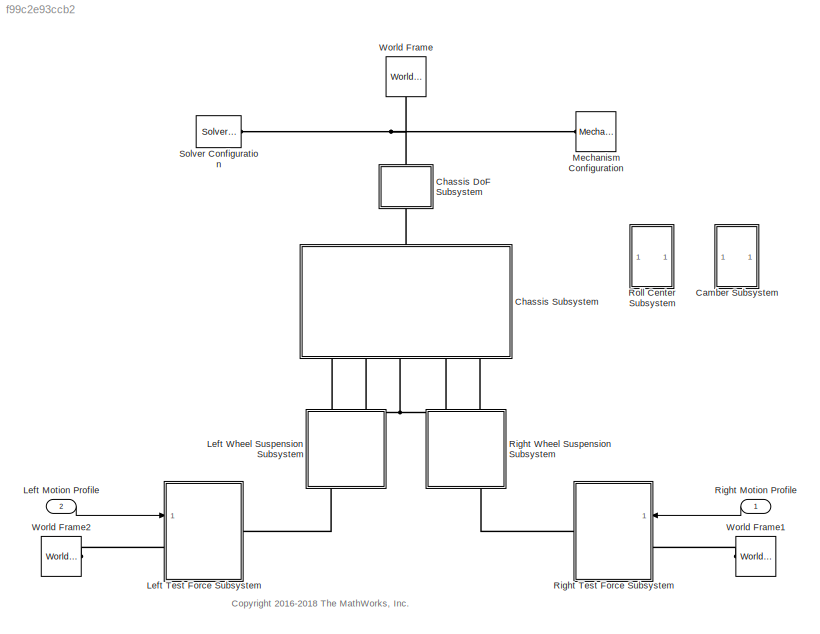
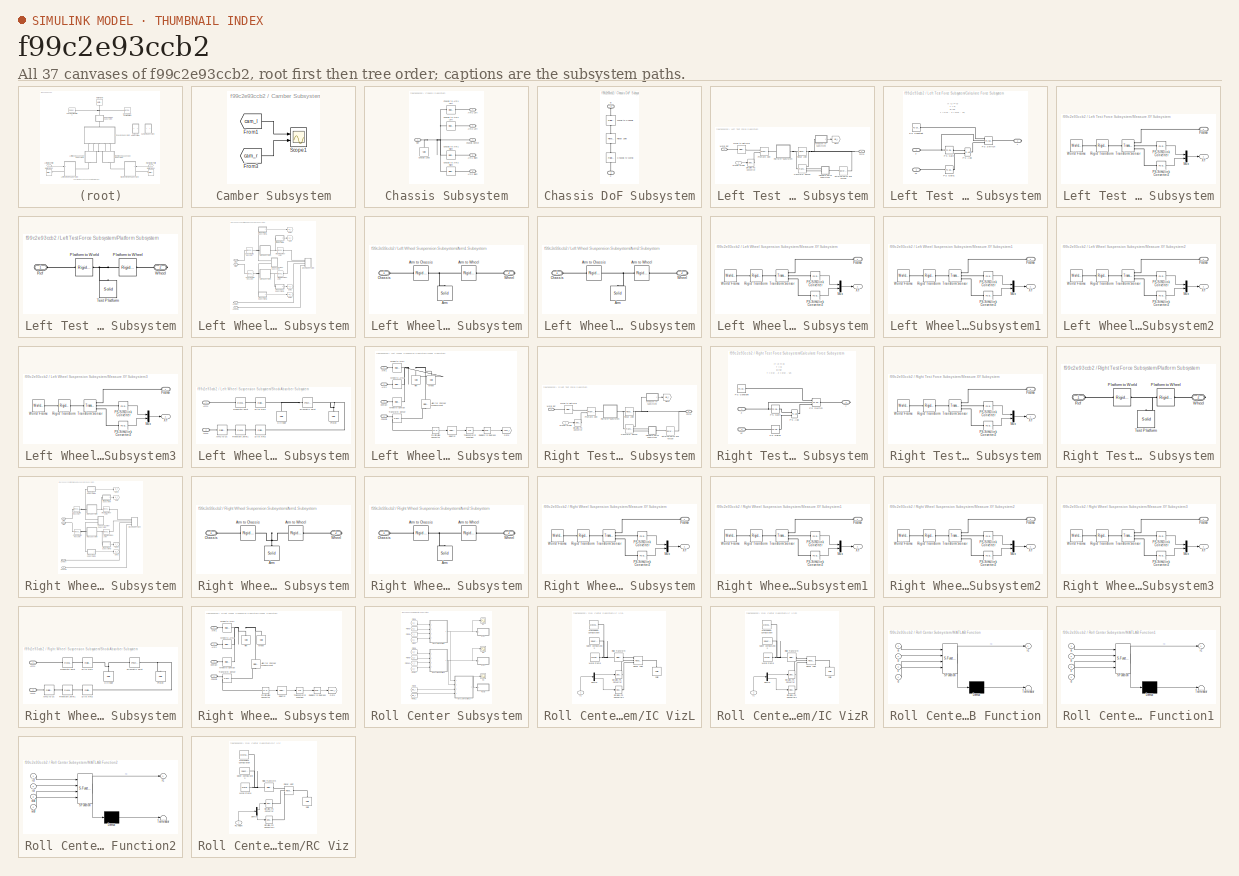
[diagram: thumbnail index - all 37 canvases of the model, root first then tree order]
MODEL slx_f99c2e93ccb2
KIND model
CONFIG AbsTol = auto
CONFIG EnableMultiTasking = on
CONFIG FixedStep = auto
CONFIG MaxStep = auto
CONFIG MinStep = auto
CONFIG PreLoadFcn = susp_params
CONFIG RelTol = 1e-3
CONFIG SampleTimeConstraint = Unconstrained
CONFIG Solver = ode45
CONFIG SolverName = ode45
CONFIG StartTime = 0.0
CONFIG StopTime = 60
BLOCK [SubSystem] Camber Subsystem
  Ports = []
  RequestExecContextInheritance = off
  Variant = off
BLOCK [From] Camber Subsystem/From1
  GotoTag = cam_l
  TagVisibility = global
BLOCK [From] Camber Subsystem/From3
  GotoTag = cam_r
  TagVisibility = global
BLOCK [Scope] Camber Subsystem/Scope1
  NumInputPorts = 2
  Ports = [2]
  ScopeSpecificationString = Simulink.scopes.TimeScopeBlockCfg('CurrentConfiguration', extmgr.ConfigurationSet(extmgr.Configuration('Core','General UI',true),extmgr.Configuration('Core','Source UI',true),extmgr.Configuration('Sources','WiredSimulink',true,'DataLoggingVariableName','ScopeData1'),extmgr.Configuration('Visuals','Time Domain',true,'SerializedDisplays',{struct('MinYLimReal','-13.87371','MaxYLimReal','0.9506','YLab...<+2005ch>
BLOCK [SubSystem] Chassis DoF Subsystem
  Ports = [0, 0, 0, 0, 0, 1, 1]
  RequestExecContextInheritance = off
  Variant = off
BLOCK [PMIOPort] Chassis DoF Subsystem/B
  Port = 1
  Side = Left
BLOCK [Reference] Chassis DoF Subsystem/Chassis to World  REF=sm_lib/Frames and
Transforms/Rigid
Transform
  Ports = [0, 0, 0, 0, 0, 1, 1]
  SourceBlock = sm_lib/Frames and\nTransforms/Rigid\nTransform
  SourceProductBaseCode = MS
  SourceProductName = Simscape Multibody
  SourceType = Rigid\nTransform
BLOCK [PMIOPort] Chassis DoF Subsystem/F
  Port = 2
  Side = Right
BLOCK [Reference] Chassis DoF Subsystem/Planar Joint  REF=sm_lib/Joints/Planar Joint
  Ports = [0, 0, 0, 0, 0, 1, 1]
  SourceBlock = sm_lib/Joints/Planar Joint
  SourceProductBaseCode = MS
  SourceProductName = Simscape Multibody
  SourceType = Planar Joint
BLOCK [Reference] Chassis DoF Subsystem/World to Chassis  REF=sm_lib/Frames and
Transforms/Rigid
Transform
  Ports = [0, 0, 0, 0, 0, 1, 1]
  SourceBlock = sm_lib/Frames and\nTransforms/Rigid\nTransform
  SourceProductBaseCode = MS
  SourceProductName = Simscape Multibody
  SourceType = Rigid\nTransform
BLOCK [SubSystem] Chassis Subsystem
  Ports = [0, 0, 0, 0, 0, 1, 5]
  RequestExecContextInheritance = off
  Variant = off
BLOCK [PMIOPort] Chassis Subsystem/Arm1 Left
  Port = 2
  Side = Right
BLOCK [PMIOPort] Chassis Subsystem/Arm1 Right
  Port = 5
  Side = Right
BLOCK [PMIOPort] Chassis Subsystem/Arm2 Left
  Port = 3
  Side = Right
BLOCK [PMIOPort] Chassis Subsystem/Arm2 Right
  Port = 6
  Side = Right
BLOCK [PMIOPort] Chassis Subsystem/Chassis Center
  Port = 4
  Side = Right
BLOCK [Reference] Chassis Subsystem/Chassis Load  REF=sm_lib/Body Elements/Solid
  Ports = [0, 0, 0, 0, 0, 0, 1]
  SourceBlock = sm_lib/Body Elements/Solid
  SourceProductBaseCode = MS
  SourceProductName = Simscape Multibody
  SourceType = Solid
BLOCK [Reference] Chassis Subsystem/Chassis to Arm1 Left  REF=sm_lib/Frames and
Transforms/Rigid
Transform
  Ports = [0, 0, 0, 0, 0, 1, 1]
  SourceBlock = sm_lib/Frames and\nTransforms/Rigid\nTransform
  SourceProductBaseCode = MS
  SourceProductName = Simscape Multibody
  SourceType = Rigid\nTransform
BLOCK [Reference] Chassis Subsystem/Chassis to Arm1 Right  REF=sm_lib/Frames and
Transforms/Rigid
Transform
  Ports = [0, 0, 0, 0, 0, 1, 1]
  SourceBlock = sm_lib/Frames and\nTransforms/Rigid\nTransform
  SourceProductBaseCode = MS
  SourceProductName = Simscape Multibody
  SourceType = Rigid\nTransform
BLOCK [Reference] Chassis Subsystem/Chassis to Arm2 Left  REF=sm_lib/Frames and
Transforms/Rigid
Transform
  Ports = [0, 0, 0, 0, 0, 1, 1]
  SourceBlock = sm_lib/Frames and\nTransforms/Rigid\nTransform
  SourceProductBaseCode = MS
  SourceProductName = Simscape Multibody
  SourceType = Rigid\nTransform
BLOCK [Reference] Chassis Subsystem/Chassis to Arm2 Right  REF=sm_lib/Frames and
Transforms/Rigid
Transform
  Ports = [0, 0, 0, 0, 0, 1, 1]
  SourceBlock = sm_lib/Frames and\nTransforms/Rigid\nTransform
  SourceProductBaseCode = MS
  SourceProductName = Simscape Multibody
  SourceType = Rigid\nTransform
BLOCK [PMIOPort] Chassis Subsystem/Ref
  Port = 1
  Side = Left
BLOCK [Inport] Left Motion Profile
  IconDisplay = Port number
  Port = 2
BLOCK [SubSystem] Left Test Force Subsystem
  Ports = [1, 0, 0, 0, 0, 1, 1]
  RequestExecContextInheritance = off
  Variant = off
BLOCK [SubSystem] Left Test Force Subsystem/Calculate Force Subsystem
  Ports = [0, 0, 0, 0, 0, 2, 1]
  RequestExecContextInheritance = off
  Variant = off
BLOCK [Reference] Left Test Force Subsystem/Calculate Force Subsystem/PS Add  REF=fl_lib/Physical Signals/Functions/PS Add
  Ports = [0, 0, 0, 0, 0, 2, 1]
  SourceBlock = fl_lib/Physical Signals/Functions/PS Add
  SourceProductBaseCode = SS
  SourceProductName = Simscape
  SourceType = PS Add
BLOCK [Reference] Left Test Force Subsystem/Calculate Force Subsystem/PS Constant  REF=fl_lib/Physical Signals/Sources/PS Constant
  Ports = [0, 0, 0, 0, 0, 0, 1]
  SourceBlock = fl_lib/Physical Signals/Sources/PS Constant
  SourceProductBaseCode = SS
  SourceProductName = Simscape
  SourceType = PS Constant
BLOCK [Reference] Left Test Force Subsystem/Calculate Force Subsystem/PS Gain  REF=fl_lib/Physical Signals/Functions/PS Gain
  Ports = [0, 0, 0, 0, 0, 1, 1]
  SourceBlock = fl_lib/Physical Signals/Functions/PS Gain
  SourceProductBaseCode = SS
  SourceProductName = Simscape
  SourceType = PS Gain
BLOCK [Reference] Left Test Force Subsystem/Calculate Force Subsystem/PS Gain1  REF=fl_lib/Physical Signals/Functions/PS Gain
  Ports = [0, 0, 0, 0, 0, 1, 1]
  SourceBlock = fl_lib/Physical Signals/Functions/PS Gain
  SourceProductBaseCode = SS
  SourceProductName = Simscape
  SourceType = PS Gain
BLOCK [Reference] Left Test Force Subsystem/Calculate Force Subsystem/PS Switch  REF=fl_lib/Physical Signals/Nonlinear Operators/PS Switch
  Ports = [0, 0, 0, 0, 0, 3, 1]
  SourceBlock = fl_lib/Physical Signals/Nonlinear Operators/PS Switch
  SourceProductBaseCode = SS
  SourceProductName = Simscape
  SourceType = PS Switch
BLOCK [PMIOPort] Left Test Force Subsystem/Calculate Force Subsystem/f
  Port = 2
  Side = Right
BLOCK [PMIOPort] Left Test Force Subsystem/Calculate Force Subsystem/vz
  Port = 3
  Side = Left
BLOCK [PMIOPort] Left Test Force Subsystem/Calculate Force Subsystem/z
  Port = 1
  Side = Left
BLOCK [Reference] Left Test Force Subsystem/External Force and Torque  REF=sm_lib/Forces and
Torques/External Force
and Torque
  Ports = [0, 0, 0, 0, 0, 1, 1]
  SourceBlock = sm_lib/Forces and\nTorques/External Force\nand Torque
  SourceProductBaseCode = MS
  SourceProductName = Simscape Multibody
  SourceType = External Force\nand Torque
BLOCK [PMIOPort] Left Test Force Subsystem/Force
  Port = 2
  Side = Right
BLOCK [Goto] Left Test Force Subsystem/Goto
  GotoTag = wb_l
  TagVisibility = global
BLOCK [SubSystem] Left Test Force Subsystem/Measure XY Subsystem
  Ports = [0, 1, 0, 0, 0, 1]
  RequestExecContextInheritance = off
  Variant = off
BLOCK [PMIOPort] Left Test Force Subsystem/Measure XY Subsystem/Frame
  Port = 1
  Side = Left
BLOCK [Mux] Left Test Force Subsystem/Measure XY Subsystem/Mux
  DisplayOption = bar
  Inputs = 2
  Ports = [2, 1]
BLOCK [Reference] Left Test Force Subsystem/Measure XY Subsystem/PS-Simulink Converter  REF=nesl_utility/PS-Simulink
Converter
  Ports = [0, 1, 0, 0, 0, 1]
  SourceBlock = nesl_utility/PS-Simulink\nConverter
  SourceProductBaseCode = SS
  SourceProductName = Simscape
  SourceType = PS-Simulink\nConverter
BLOCK [Reference] Left Test Force Subsystem/Measure XY Subsystem/PS-Simulink Converter2  REF=nesl_utility/PS-Simulink
Converter
  Ports = [0, 1, 0, 0, 0, 1]
  SourceBlock = nesl_utility/PS-Simulink\nConverter
  SourceProductBaseCode = SS
  SourceProductName = Simscape
  SourceType = PS-Simulink\nConverter
BLOCK [Reference] Left Test Force Subsystem/Measure XY Subsystem/Rigid Transform  REF=sm_lib/Frames and
Transforms/Rigid
Transform
  Ports = [0, 0, 0, 0, 0, 1, 1]
  SourceBlock = sm_lib/Frames and\nTransforms/Rigid\nTransform
  SourceProductBaseCode = MS
  SourceProductName = Simscape Multibody
  SourceType = Rigid\nTransform
BLOCK [Reference] Left Test Force Subsystem/Measure XY Subsystem/Transform Sensor  REF=sm_lib/Frames and
Transforms/Transform
Sensor
  Ports = [0, 0, 0, 0, 0, 1, 3]
  SourceBlock = sm_lib/Frames and\nTransforms/Transform\nSensor
  SourceProductBaseCode = MS
  SourceProductName = Simscape Multibody
  SourceType = Transform\nSensor
BLOCK [Reference] Left Test Force Subsystem/Measure XY Subsystem/World Frame  REF=sm_lib/Frames and
Transforms/World Frame
  Ports = [0, 0, 0, 0, 0, 0, 1]
  SourceBlock = sm_lib/Frames and\nTransforms/World Frame
  SourceProductBaseCode = MS
  SourceProductName = Simscape Multibody
  SourceType = World Frame
BLOCK [Outport] Left Test Force Subsystem/Measure XY Subsystem/XY
  IconDisplay = Port number
BLOCK [Inport] Left Test Force Subsystem/Motion Profile
  IconDisplay = Port number
BLOCK [Reference] Left Test Force Subsystem/Planar Joint  REF=sm_lib/Joints/Planar Joint
  Ports = [0, 0, 0, 0, 0, 1, 1]
  SourceBlock = sm_lib/Joints/Planar Joint
  SourceProductBaseCode = MS
  SourceProductName = Simscape Multibody
  SourceType = Planar Joint
BLOCK [SubSystem] Left Test Force Subsystem/Platform Subsystem
  Ports = [0, 0, 0, 0, 0, 1, 1]
  RequestExecContextInheritance = off
  Variant = off
BLOCK [Reference] Left Test Force Subsystem/Platform Subsystem/Platform to Wheel  REF=sm_lib/Frames and
Transforms/Rigid
Transform
  Ports = [0, 0, 0, 0, 0, 1, 1]
  SourceBlock = sm_lib/Frames and\nTransforms/Rigid\nTransform
  SourceProductBaseCode = MS
  SourceProductName = Simscape Multibody
  SourceType = Rigid\nTransform
BLOCK [Reference] Left Test Force Subsystem/Platform Subsystem/Platform to World  REF=sm_lib/Frames and
Transforms/Rigid
Transform
  Ports = [0, 0, 0, 0, 0, 1, 1]
  SourceBlock = sm_lib/Frames and\nTransforms/Rigid\nTransform
  SourceProductBaseCode = MS
  SourceProductName = Simscape Multibody
  SourceType = Rigid\nTransform
BLOCK [PMIOPort] Left Test Force Subsystem/Platform Subsystem/Ref
  Port = 1
  Side = Left
BLOCK [Reference] Left Test Force Subsystem/Platform Subsystem/Test Platform  REF=sm_lib/Body Elements/Solid
  Ports = [0, 0, 0, 0, 0, 0, 1]
  SourceBlock = sm_lib/Body Elements/Solid
  SourceProductBaseCode = MS
  SourceProductName = Simscape Multibody
  SourceType = Solid
BLOCK [PMIOPort] Left Test Force Subsystem/Platform Subsystem/Wheel
  Port = 2
  Side = Right
BLOCK [Reference] Left Test Force Subsystem/Prismatic Joint  REF=sm_lib/Joints/Prismatic
Joint
  Ports = [0, 0, 0, 0, 0, 2, 1]
  SourceBlock = sm_lib/Joints/Prismatic\nJoint
  SourceProductBaseCode = MS
  SourceProductName = Simscape Multibody
  SourceType = Prismatic\nJoint
BLOCK [Reference] Left Test Force Subsystem/Simulink-PS Converter  REF=nesl_utility/Simulink-PS
Converter
  Ports = [1, 0, 0, 0, 0, 0, 1]
  SourceBlock = nesl_utility/Simulink-PS\nConverter
  SourceProductBaseCode = SS
  SourceProductName = Simscape
  SourceType = Simulink-PS\nConverter
BLOCK [Reference] Left Test Force Subsystem/Transform Sensor  REF=sm_lib/Frames and
Transforms/Transform
Sensor
  Ports = [0, 0, 0, 0, 0, 1, 3]
  SourceBlock = sm_lib/Frames and\nTransforms/Transform\nSensor
  SourceProductBaseCode = MS
  SourceProductName = Simscape Multibody
  SourceType = Transform\nSensor
BLOCK [PMIOPort] Left Test Force Subsystem/World Ref
  Port = 1
  Side = Left
BLOCK [Reference] Left Test Force Subsystem/World to Platform  REF=sm_lib/Frames and
Transforms/Rigid
Transform
  Ports = [0, 0, 0, 0, 0, 1, 1]
  SourceBlock = sm_lib/Frames and\nTransforms/Rigid\nTransform
  SourceProductBaseCode = MS
  SourceProductName = Simscape Multibody
  SourceType = Rigid\nTransform
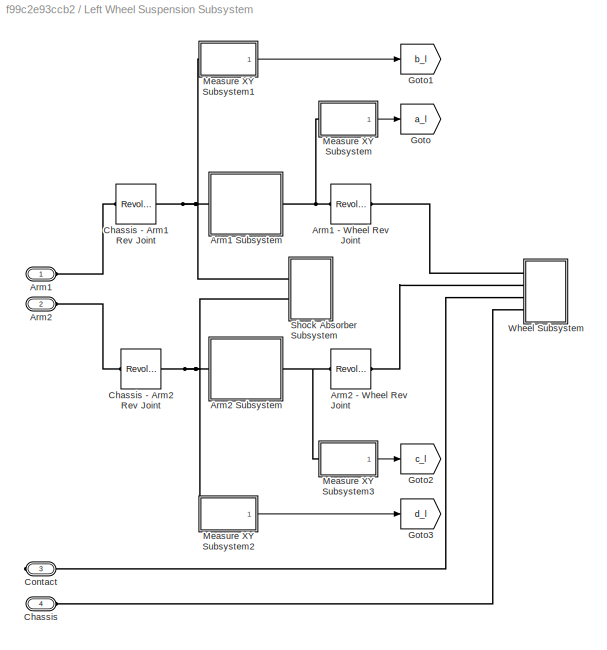
BLOCK [SubSystem] Left Wheel Suspension Subsystem
  Ports = [0, 0, 0, 0, 0, 3, 1]
  RequestExecContextInheritance = off
  Variant = off
BLOCK [PMIOPort] Left Wheel Suspension Subsystem/Arm1
  Port = 1
  Side = Left
BLOCK [Reference] Left Wheel Suspension Subsystem/Arm1 - Wheel Rev Joint  REF=sm_lib/Joints/Revolute Joint
  Ports = [0, 0, 0, 0, 0, 1, 1]
  SourceBlock = sm_lib/Joints/Revolute Joint
  SourceProductBaseCode = MS
  SourceProductName = Simscape Multibody
  SourceType = Revolute Joint
BLOCK [SubSystem] Left Wheel Suspension Subsystem/Arm1 Subsystem
  Ports = [0, 0, 0, 0, 0, 1, 1]
  RequestExecContextInheritance = off
  Variant = off
BLOCK [Reference] Left Wheel Suspension Subsystem/Arm1 Subsystem/Arm  REF=sm_lib/Body Elements/Solid
  Ports = [0, 0, 0, 0, 0, 0, 1]
  SourceBlock = sm_lib/Body Elements/Solid
  SourceProductBaseCode = MS
  SourceProductName = Simscape Multibody
  SourceType = Solid
BLOCK [Reference] Left Wheel Suspension Subsystem/Arm1 Subsystem/Arm to Chassis  REF=sm_lib/Frames and
Transforms/Rigid
Transform
  Ports = [0, 0, 0, 0, 0, 1, 1]
  SourceBlock = sm_lib/Frames and\nTransforms/Rigid\nTransform
  SourceProductBaseCode = MS
  SourceProductName = Simscape Multibody
  SourceType = Rigid\nTransform
BLOCK [Reference] Left Wheel Suspension Subsystem/Arm1 Subsystem/Arm to Wheel  REF=sm_lib/Frames and
Transforms/Rigid
Transform
  Ports = [0, 0, 0, 0, 0, 1, 1]
  SourceBlock = sm_lib/Frames and\nTransforms/Rigid\nTransform
  SourceProductBaseCode = MS
  SourceProductName = Simscape Multibody
  SourceType = Rigid\nTransform
BLOCK [PMIOPort] Left Wheel Suspension Subsystem/Arm1 Subsystem/Chassis
  Port = 1
  Side = Left
BLOCK [PMIOPort] Left Wheel Suspension Subsystem/Arm1 Subsystem/Wheel
  Port = 2
  Side = Right
BLOCK [PMIOPort] Left Wheel Suspension Subsystem/Arm2
  Port = 2
  Side = Left
BLOCK [Reference] Left Wheel Suspension Subsystem/Arm2 - Wheel Rev Joint  REF=sm_lib/Joints/Revolute Joint
  Ports = [0, 0, 0, 0, 0, 1, 1]
  SourceBlock = sm_lib/Joints/Revolute Joint
  SourceProductBaseCode = MS
  SourceProductName = Simscape Multibody
  SourceType = Revolute Joint
BLOCK [SubSystem] Left Wheel Suspension Subsystem/Arm2 Subsystem
  Ports = [0, 0, 0, 0, 0, 1, 1]
  RequestExecContextInheritance = off
  Variant = off
BLOCK [Reference] Left Wheel Suspension Subsystem/Arm2 Subsystem/Arm  REF=sm_lib/Body Elements/Solid
  Ports = [0, 0, 0, 0, 0, 0, 1]
  SourceBlock = sm_lib/Body Elements/Solid
  SourceProductBaseCode = MS
  SourceProductName = Simscape Multibody
  SourceType = Solid
BLOCK [Reference] Left Wheel Suspension Subsystem/Arm2 Subsystem/Arm to Chassis  REF=sm_lib/Frames and
Transforms/Rigid
Transform
  Ports = [0, 0, 0, 0, 0, 1, 1]
  SourceBlock = sm_lib/Frames and\nTransforms/Rigid\nTransform
  SourceProductBaseCode = MS
  SourceProductName = Simscape Multibody
  SourceType = Rigid\nTransform
BLOCK [Reference] Left Wheel Suspension Subsystem/Arm2 Subsystem/Arm to Wheel  REF=sm_lib/Frames and
Transforms/Rigid
Transform
  Ports = [0, 0, 0, 0, 0, 1, 1]
  SourceBlock = sm_lib/Frames and\nTransforms/Rigid\nTransform
  SourceProductBaseCode = MS
  SourceProductName = Simscape Multibody
  SourceType = Rigid\nTransform
BLOCK [PMIOPort] Left Wheel Suspension Subsystem/Arm2 Subsystem/Chassis
  Port = 1
  Side = Left
BLOCK [PMIOPort] Left Wheel Suspension Subsystem/Arm2 Subsystem/Wheel
  Port = 2
  Side = Right
BLOCK [PMIOPort] Left Wheel Suspension Subsystem/Chassis
  Port = 4
  Side = Left
BLOCK [Reference] Left Wheel Suspension Subsystem/Chassis - Arm1 Rev Joint  REF=sm_lib/Joints/Revolute Joint
  Ports = [0, 0, 0, 0, 0, 1, 1]
  SourceBlock = sm_lib/Joints/Revolute Joint
  SourceProductBaseCode = MS
  SourceProductName = Simscape Multibody
  SourceType = Revolute Joint
BLOCK [Reference] Left Wheel Suspension Subsystem/Chassis - Arm2 Rev Joint  REF=sm_lib/Joints/Revolute Joint
  Ports = [0, 0, 0, 0, 0, 1, 1]
  SourceBlock = sm_lib/Joints/Revolute Joint
  SourceProductBaseCode = MS
  SourceProductName = Simscape Multibody
  SourceType = Revolute Joint
BLOCK [PMIOPort] Left Wheel Suspension Subsystem/Contact
  Port = 3
  Side = Right
BLOCK [Goto] Left Wheel Suspension Subsystem/Goto
  GotoTag = a_l
  TagVisibility = global
BLOCK [Goto] Left Wheel Suspension Subsystem/Goto1
  GotoTag = b_l
  TagVisibility = global
BLOCK [Goto] Left Wheel Suspension Subsystem/Goto2
  GotoTag = c_l
  TagVisibility = global
BLOCK [Goto] Left Wheel Suspension Subsystem/Goto3
  GotoTag = d_l
  TagVisibility = global
BLOCK [SubSystem] Left Wheel Suspension Subsystem/Measure XY Subsystem
  Ports = [0, 1, 0, 0, 0, 1]
  RequestExecContextInheritance = off
  Variant = off
BLOCK [PMIOPort] Left Wheel Suspension Subsystem/Measure XY Subsystem/Frame
  Port = 1
  Side = Left
BLOCK [Mux] Left Wheel Suspension Subsystem/Measure XY Subsystem/Mux
  DisplayOption = bar
  Inputs = 2
  Ports = [2, 1]
BLOCK [Reference] Left Wheel Suspension Subsystem/Measure XY Subsystem/PS-Simulink Converter  REF=nesl_utility/PS-Simulink
Converter
  Ports = [0, 1, 0, 0, 0, 1]
  SourceBlock = nesl_utility/PS-Simulink\nConverter
  SourceProductBaseCode = SS
  SourceProductName = Simscape
  SourceType = PS-Simulink\nConverter
BLOCK [Reference] Left Wheel Suspension Subsystem/Measure XY Subsystem/PS-Simulink Converter2  REF=nesl_utility/PS-Simulink
Converter
  Ports = [0, 1, 0, 0, 0, 1]
  SourceBlock = nesl_utility/PS-Simulink\nConverter
  SourceProductBaseCode = SS
  SourceProductName = Simscape
  SourceType = PS-Simulink\nConverter
BLOCK [Reference] Left Wheel Suspension Subsystem/Measure XY Subsystem/Rigid Transform  REF=sm_lib/Frames and
Transforms/Rigid
Transform
  Ports = [0, 0, 0, 0, 0, 1, 1]
  SourceBlock = sm_lib/Frames and\nTransforms/Rigid\nTransform
  SourceProductBaseCode = MS
  SourceProductName = Simscape Multibody
  SourceType = Rigid\nTransform
BLOCK [Reference] Left Wheel Suspension Subsystem/Measure XY Subsystem/Transform Sensor  REF=sm_lib/Frames and
Transforms/Transform
Sensor
  Ports = [0, 0, 0, 0, 0, 1, 3]
  SourceBlock = sm_lib/Frames and\nTransforms/Transform\nSensor
  SourceProductBaseCode = MS
  SourceProductName = Simscape Multibody
  SourceType = Transform\nSensor
BLOCK [Reference] Left Wheel Suspension Subsystem/Measure XY Subsystem/World Frame  REF=sm_lib/Frames and
Transforms/World Frame
  Ports = [0, 0, 0, 0, 0, 0, 1]
  SourceBlock = sm_lib/Frames and\nTransforms/World Frame
  SourceProductBaseCode = MS
  SourceProductName = Simscape Multibody
  SourceType = World Frame
BLOCK [Outport] Left Wheel Suspension Subsystem/Measure XY Subsystem/XY
  IconDisplay = Port number
BLOCK [SubSystem] Left Wheel Suspension Subsystem/Measure XY Subsystem1
  Ports = [0, 1, 0, 0, 0, 1]
  RequestExecContextInheritance = off
  Variant = off
BLOCK [PMIOPort] Left Wheel Suspension Subsystem/Measure XY Subsystem1/Frame
  Port = 1
  Side = Left
BLOCK [Mux] Left Wheel Suspension Subsystem/Measure XY Subsystem1/Mux
  DisplayOption = bar
  Inputs = 2
  Ports = [2, 1]
BLOCK [Reference] Left Wheel Suspension Subsystem/Measure XY Subsystem1/PS-Simulink Converter  REF=nesl_utility/PS-Simulink
Converter
  Ports = [0, 1, 0, 0, 0, 1]
  SourceBlock = nesl_utility/PS-Simulink\nConverter
  SourceProductBaseCode = SS
  SourceProductName = Simscape
  SourceType = PS-Simulink\nConverter
BLOCK [Reference] Left Wheel Suspension Subsystem/Measure XY Subsystem1/PS-Simulink Converter2  REF=nesl_utility/PS-Simulink
Converter
  Ports = [0, 1, 0, 0, 0, 1]
  SourceBlock = nesl_utility/PS-Simulink\nConverter
  SourceProductBaseCode = SS
  SourceProductName = Simscape
  SourceType = PS-Simulink\nConverter
BLOCK [Reference] Left Wheel Suspension Subsystem/Measure XY Subsystem1/Rigid Transform  REF=sm_lib/Frames and
Transforms/Rigid
Transform
  Ports = [0, 0, 0, 0, 0, 1, 1]
  SourceBlock = sm_lib/Frames and\nTransforms/Rigid\nTransform
  SourceProductBaseCode = MS
  SourceProductName = Simscape Multibody
  SourceType = Rigid\nTransform
BLOCK [Reference] Left Wheel Suspension Subsystem/Measure XY Subsystem1/Transform Sensor  REF=sm_lib/Frames and
Transforms/Transform
Sensor
  Ports = [0, 0, 0, 0, 0, 1, 3]
  SourceBlock = sm_lib/Frames and\nTransforms/Transform\nSensor
  SourceProductBaseCode = MS
  SourceProductName = Simscape Multibody
  SourceType = Transform\nSensor
BLOCK [Reference] Left Wheel Suspension Subsystem/Measure XY Subsystem1/World Frame  REF=sm_lib/Frames and
Transforms/World Frame
  Ports = [0, 0, 0, 0, 0, 0, 1]
  SourceBlock = sm_lib/Frames and\nTransforms/World Frame
  SourceProductBaseCode = MS
  SourceProductName = Simscape Multibody
  SourceType = World Frame
BLOCK [Outport] Left Wheel Suspension Subsystem/Measure XY Subsystem1/XY
  IconDisplay = Port number
BLOCK [SubSystem] Left Wheel Suspension Subsystem/Measure XY Subsystem2
  Ports = [0, 1, 0, 0, 0, 1]
  RequestExecContextInheritance = off
  Variant = off
BLOCK [PMIOPort] Left Wheel Suspension Subsystem/Measure XY Subsystem2/Frame
  Port = 1
  Side = Left
BLOCK [Mux] Left Wheel Suspension Subsystem/Measure XY Subsystem2/Mux
  DisplayOption = bar
  Inputs = 2
  Ports = [2, 1]
BLOCK [Reference] Left Wheel Suspension Subsystem/Measure XY Subsystem2/PS-Simulink Converter  REF=nesl_utility/PS-Simulink
Converter
  Ports = [0, 1, 0, 0, 0, 1]
  SourceBlock = nesl_utility/PS-Simulink\nConverter
  SourceProductBaseCode = SS
  SourceProductName = Simscape
  SourceType = PS-Simulink\nConverter
BLOCK [Reference] Left Wheel Suspension Subsystem/Measure XY Subsystem2/PS-Simulink Converter2  REF=nesl_utility/PS-Simulink
Converter
  Ports = [0, 1, 0, 0, 0, 1]
  SourceBlock = nesl_utility/PS-Simulink\nConverter
  SourceProductBaseCode = SS
  SourceProductName = Simscape
  SourceType = PS-Simulink\nConverter
BLOCK [Reference] Left Wheel Suspension Subsystem/Measure XY Subsystem2/Rigid Transform  REF=sm_lib/Frames and
Transforms/Rigid
Transform
  Ports = [0, 0, 0, 0, 0, 1, 1]
  SourceBlock = sm_lib/Frames and\nTransforms/Rigid\nTransform
  SourceProductBaseCode = MS
  SourceProductName = Simscape Multibody
  SourceType = Rigid\nTransform
BLOCK [Reference] Left Wheel Suspension Subsystem/Measure XY Subsystem2/Transform Sensor  REF=sm_lib/Frames and
Transforms/Transform
Sensor
  Ports = [0, 0, 0, 0, 0, 1, 3]
  SourceBlock = sm_lib/Frames and\nTransforms/Transform\nSensor
  SourceProductBaseCode = MS
  SourceProductName = Simscape Multibody
  SourceType = Transform\nSensor
BLOCK [Reference] Left Wheel Suspension Subsystem/Measure XY Subsystem2/World Frame  REF=sm_lib/Frames and
Transforms/World Frame
  Ports = [0, 0, 0, 0, 0, 0, 1]
  SourceBlock = sm_lib/Frames and\nTransforms/World Frame
  SourceProductBaseCode = MS
  SourceProductName = Simscape Multibody
  SourceType = World Frame
BLOCK [Outport] Left Wheel Suspension Subsystem/Measure XY Subsystem2/XY
  IconDisplay = Port number
BLOCK [SubSystem] Left Wheel Suspension Subsystem/Measure XY Subsystem3
  Ports = [0, 1, 0, 0, 0, 1]
  RequestExecContextInheritance = off
  Variant = off
BLOCK [PMIOPort] Left Wheel Suspension Subsystem/Measure XY Subsystem3/Frame
  Port = 1
  Side = Left
BLOCK [Mux] Left Wheel Suspension Subsystem/Measure XY Subsystem3/Mux
  DisplayOption = bar
  Inputs = 2
  Ports = [2, 1]
BLOCK [Reference] Left Wheel Suspension Subsystem/Measure XY Subsystem3/PS-Simulink Converter  REF=nesl_utility/PS-Simulink
Converter
  Ports = [0, 1, 0, 0, 0, 1]
  SourceBlock = nesl_utility/PS-Simulink\nConverter
  SourceProductBaseCode = SS
  SourceProductName = Simscape
  SourceType = PS-Simulink\nConverter
BLOCK [Reference] Left Wheel Suspension Subsystem/Measure XY Subsystem3/PS-Simulink Converter2  REF=nesl_utility/PS-Simulink
Converter
  Ports = [0, 1, 0, 0, 0, 1]
  SourceBlock = nesl_utility/PS-Simulink\nConverter
  SourceProductBaseCode = SS
  SourceProductName = Simscape
  SourceType = PS-Simulink\nConverter
BLOCK [Reference] Left Wheel Suspension Subsystem/Measure XY Subsystem3/Rigid Transform  REF=sm_lib/Frames and
Transforms/Rigid
Transform
  Ports = [0, 0, 0, 0, 0, 1, 1]
  SourceBlock = sm_lib/Frames and\nTransforms/Rigid\nTransform
  SourceProductBaseCode = MS
  SourceProductName = Simscape Multibody
  SourceType = Rigid\nTransform
BLOCK [Reference] Left Wheel Suspension Subsystem/Measure XY Subsystem3/Transform Sensor  REF=sm_lib/Frames and
Transforms/Transform
Sensor
  Ports = [0, 0, 0, 0, 0, 1, 3]
  SourceBlock = sm_lib/Frames and\nTransforms/Transform\nSensor
  SourceProductBaseCode = MS
  SourceProductName = Simscape Multibody
  SourceType = Transform\nSensor
BLOCK [Reference] Left Wheel Suspension Subsystem/Measure XY Subsystem3/World Frame  REF=sm_lib/Frames and
Transforms/World Frame
  Ports = [0, 0, 0, 0, 0, 0, 1]
  SourceBlock = sm_lib/Frames and\nTransforms/World Frame
  SourceProductBaseCode = MS
  SourceProductName = Simscape Multibody
  SourceType = World Frame
BLOCK [Outport] Left Wheel Suspension Subsystem/Measure XY Subsystem3/XY
  IconDisplay = Port number
BLOCK [SubSystem] Left Wheel Suspension Subsystem/Shock Absorber Subsystem
  Ports = [0, 0, 0, 0, 0, 2]
  RequestExecContextInheritance = off
  Variant = off
BLOCK [PMIOPort] Left Wheel Suspension Subsystem/Shock Absorber Subsystem/Arm1
  Port = 1
  Side = Left
BLOCK [PMIOPort] Left Wheel Suspension Subsystem/Shock Absorber Subsystem/Arm2
  Port = 2
  Side = Left
BLOCK [Reference] Left Wheel Suspension Subsystem/Shock Absorber Subsystem/Arm2 to SA  REF=sm_lib/Frames and
Transforms/Rigid
Transform
  Ports = [0, 0, 0, 0, 0, 1, 1]
  SourceBlock = sm_lib/Frames and\nTransforms/Rigid\nTransform
  SourceProductBaseCode = MS
  SourceProductName = Simscape Multibody
  SourceType = Rigid\nTransform
BLOCK [Reference] Left Wheel Suspension Subsystem/Shock Absorber Subsystem/Cylinder  REF=sm_lib/Body Elements/Solid
  Ports = [0, 0, 0, 0, 0, 0, 1]
  SourceBlock = sm_lib/Body Elements/Solid
  SourceProductBaseCode = MS
  SourceProductName = Simscape Multibody
  SourceType = Solid
BLOCK [Reference] Left Wheel Suspension Subsystem/Shock Absorber Subsystem/Piston  REF=sm_lib/Body Elements/Solid
  Ports = [0, 0, 0, 0, 0, 0, 1]
  SourceBlock = sm_lib/Body Elements/Solid
  SourceProductBaseCode = MS
  SourceProductName = Simscape Multibody
  SourceType = Solid
BLOCK [Reference] Left Wheel Suspension Subsystem/Shock Absorber Subsystem/Prismatic Joint  REF=sm_lib/Joints/Prismatic
Joint
  Ports = [0, 0, 0, 0, 0, 1, 1]
  SourceBlock = sm_lib/Joints/Prismatic\nJoint
  SourceProductBaseCode = MS
  SourceProductName = Simscape Multibody
  SourceType = Prismatic\nJoint
BLOCK [Reference] Left Wheel Suspension Subsystem/Shock Absorber Subsystem/Revolute Joint  REF=sm_lib/Joints/Revolute Joint
  Ports = [0, 0, 0, 0, 0, 1, 1]
  SourceBlock = sm_lib/Joints/Revolute Joint
  SourceProductBaseCode = MS
  SourceProductName = Simscape Multibody
  SourceType = Revolute Joint
BLOCK [Reference] Left Wheel Suspension Subsystem/Shock Absorber Subsystem/Revolute Joint1  REF=sm_lib/Joints/Revolute Joint
  Ports = [0, 0, 0, 0, 0, 1, 1]
  SourceBlock = sm_lib/Joints/Revolute Joint
  SourceProductBaseCode = MS
  SourceProductName = Simscape Multibody
  SourceType = Revolute Joint
BLOCK [Reference] Left Wheel Suspension Subsystem/Shock Absorber Subsystem/SA to Arm1  REF=sm_lib/Frames and
Transforms/Rigid
Transform
  Ports = [0, 0, 0, 0, 0, 1, 1]
  SourceBlock = sm_lib/Frames and\nTransforms/Rigid\nTransform
  SourceProductBaseCode = MS
  SourceProductName = Simscape Multibody
  SourceType = Rigid\nTransform
BLOCK [Reference] Left Wheel Suspension Subsystem/Shock Absorber Subsystem/SA to Arm2  REF=sm_lib/Frames and
Transforms/Rigid
Transform
  Ports = [0, 0, 0, 0, 0, 1, 1]
  SourceBlock = sm_lib/Frames and\nTransforms/Rigid\nTransform
  SourceProductBaseCode = MS
  SourceProductName = Simscape Multibody
  SourceType = Rigid\nTransform
BLOCK [SubSystem] Left Wheel Suspension Subsystem/Wheel Subsystem
  Ports = [0, 0, 0, 0, 0, 4]
  RequestExecContextInheritance = off
  Variant = off
BLOCK [Reference] Left Wheel Suspension Subsystem/Wheel Subsystem/Align for Camber Measurment  REF=sm_lib/Frames and
Transforms/Rigid
Transform
  Ports = [0, 0, 0, 0, 0, 1, 1]
  SourceBlock = sm_lib/Frames and\nTransforms/Rigid\nTransform
  SourceProductBaseCode = MS
  SourceProductName = Simscape Multibody
  SourceType = Rigid\nTransform
BLOCK [PMIOPort] Left Wheel Suspension Subsystem/Wheel Subsystem/Arm1
  Port = 1
  Side = Left
BLOCK [PMIOPort] Left Wheel Suspension Subsystem/Wheel Subsystem/Arm2
  Port = 2
  Side = Left
BLOCK [PMIOPort] Left Wheel Suspension Subsystem/Wheel Subsystem/Chassis
  Port = 4
  Side = Left
BLOCK [PMIOPort] Left Wheel Suspension Subsystem/Wheel Subsystem/Contact
  Port = 3
  Side = Left
BLOCK [Goto] Left Wheel Suspension Subsystem/Wheel Subsystem/Goto
  GotoTag = cam_l
  TagVisibility = global
BLOCK [Reference] Left Wheel Suspension Subsystem/Wheel Subsystem/PS-Simulink Converter  REF=nesl_utility/PS-Simulink
Converter
  Ports = [0, 1, 0, 0, 0, 1]
  SourceBlock = nesl_utility/PS-Simulink\nConverter
  SourceProductBaseCode = SS
  SourceProductName = Simscape
  SourceType = PS-Simulink\nConverter
BLOCK [Reference] Left Wheel Suspension Subsystem/Wheel Subsystem/Radians to Degrees  REF=simulink_extras/Transformations/Radians
to Degrees
  Ports = [1, 1]
  SourceBlock = simulink_extras/Transformations/Radians\nto Degrees
  SourceProductBaseCode = SL
  SourceProductName = Simulink
  SourceType = RadiansToDegrees
BLOCK [Reference] Left Wheel Suspension Subsystem/Wheel Subsystem/Rim  REF=sm_lib/Body Elements/Solid
  Ports = [0, 0, 0, 0, 0, 0, 1]
  SourceBlock = sm_lib/Body Elements/Solid
  SourceProductBaseCode = MS
  SourceProductName = Simscape Multibody
  SourceType = Solid
BLOCK [Selector] Left Wheel Suspension Subsystem/Wheel Subsystem/Selector
  IndexOptions = Index vector (dialog),Index vector (dialog)
  Indices = 2,3
  InputPortWidth = 3
  NumberOfDimensions = 2
  OutputSizes = 1,1
  Ports = [1, 1]
BLOCK [Reference] Left Wheel Suspension Subsystem/Wheel Subsystem/Transform Sensor  REF=sm_lib/Frames and
Transforms/Transform
Sensor
  Ports = [0, 0, 0, 0, 0, 1, 2]
  SourceBlock = sm_lib/Frames and\nTransforms/Transform\nSensor
  SourceProductBaseCode = MS
  SourceProductName = Simscape Multibody
  SourceType = Transform\nSensor
BLOCK [Trigonometry] Left Wheel Suspension Subsystem/Wheel Subsystem/Trigonometric Function
  Operator = asin
  Ports = [1, 1]
BLOCK [Reference] Left Wheel Suspension Subsystem/Wheel Subsystem/Wheel  REF=sm_lib/Body Elements/Solid
  Ports = [0, 0, 0, 0, 0, 0, 1]
  SourceBlock = sm_lib/Body Elements/Solid
  SourceProductBaseCode = MS
  SourceProductName = Simscape Multibody
  SourceType = Solid
BLOCK [Reference] Left Wheel Suspension Subsystem/Wheel Subsystem/Wheel to Arm1  REF=sm_lib/Frames and
Transforms/Rigid
Transform
  Ports = [0, 0, 0, 0, 0, 1, 1]
  SourceBlock = sm_lib/Frames and\nTransforms/Rigid\nTransform
  SourceProductBaseCode = MS
  SourceProductName = Simscape Multibody
  SourceType = Rigid\nTransform
BLOCK [Reference] Left Wheel Suspension Subsystem/Wheel Subsystem/Wheel to Arm2  REF=sm_lib/Frames and
Transforms/Rigid
Transform
  Ports = [0, 0, 0, 0, 0, 1, 1]
  SourceBlock = sm_lib/Frames and\nTransforms/Rigid\nTransform
  SourceProductBaseCode = MS
  SourceProductName = Simscape Multibody
  SourceType = Rigid\nTransform
BLOCK [Reference] Left Wheel Suspension Subsystem/Wheel Subsystem/Wheel to Contact  REF=sm_lib/Frames and
Transforms/Rigid
Transform
  Ports = [0, 0, 0, 0, 0, 1, 1]
  SourceBlock = sm_lib/Frames and\nTransforms/Rigid\nTransform
  SourceProductBaseCode = MS
  SourceProductName = Simscape Multibody
  SourceType = Rigid\nTransform
BLOCK [Reference] Mechanism Configuration  REF=sm_lib/Utilities/Mechanism
Configuration
  Ports = [0, 0, 0, 0, 0, 0, 1]
  SourceBlock = sm_lib/Utilities/Mechanism\nConfiguration
  SourceProductBaseCode = MS
  SourceProductName = Simscape Multibody
  SourceType = Mechanism\nConfiguration
BLOCK [Inport] Right Motion Profile
  IconDisplay = Port number
BLOCK [SubSystem] Right Test Force Subsystem
  Ports = [1, 0, 0, 0, 0, 1, 1]
  RequestExecContextInheritance = off
  Variant = off
BLOCK [SubSystem] Right Test Force Subsystem/Calculate Force Subsystem
  Ports = [0, 0, 0, 0, 0, 2, 1]
  RequestExecContextInheritance = off
  Variant = off
BLOCK [Reference] Right Test Force Subsystem/Calculate Force Subsystem/PS Add  REF=fl_lib/Physical Signals/Functions/PS Add
  Ports = [0, 0, 0, 0, 0, 2, 1]
  SourceBlock = fl_lib/Physical Signals/Functions/PS Add
  SourceProductBaseCode = SS
  SourceProductName = Simscape
  SourceType = PS Add
BLOCK [Reference] Right Test Force Subsystem/Calculate Force Subsystem/PS Constant  REF=fl_lib/Physical Signals/Sources/PS Constant
  Ports = [0, 0, 0, 0, 0, 0, 1]
  SourceBlock = fl_lib/Physical Signals/Sources/PS Constant
  SourceProductBaseCode = SS
  SourceProductName = Simscape
  SourceType = PS Constant
BLOCK [Reference] Right Test Force Subsystem/Calculate Force Subsystem/PS Gain  REF=fl_lib/Physical Signals/Functions/PS Gain
  Ports = [0, 0, 0, 0, 0, 1, 1]
  SourceBlock = fl_lib/Physical Signals/Functions/PS Gain
  SourceProductBaseCode = SS
  SourceProductName = Simscape
  SourceType = PS Gain
BLOCK [Reference] Right Test Force Subsystem/Calculate Force Subsystem/PS Gain1  REF=fl_lib/Physical Signals/Functions/PS Gain
  Ports = [0, 0, 0, 0, 0, 1, 1]
  SourceBlock = fl_lib/Physical Signals/Functions/PS Gain
  SourceProductBaseCode = SS
  SourceProductName = Simscape
  SourceType = PS Gain
BLOCK [Reference] Right Test Force Subsystem/Calculate Force Subsystem/PS Switch  REF=fl_lib/Physical Signals/Nonlinear Operators/PS Switch
  Ports = [0, 0, 0, 0, 0, 3, 1]
  SourceBlock = fl_lib/Physical Signals/Nonlinear Operators/PS Switch
  SourceProductBaseCode = SS
  SourceProductName = Simscape
  SourceType = PS Switch
BLOCK [PMIOPort] Right Test Force Subsystem/Calculate Force Subsystem/f
  Port = 2
  Side = Right
BLOCK [PMIOPort] Right Test Force Subsystem/Calculate Force Subsystem/vz
  Port = 3
  Side = Left
BLOCK [PMIOPort] Right Test Force Subsystem/Calculate Force Subsystem/z
  Port = 1
  Side = Left
BLOCK [Reference] Right Test Force Subsystem/External Force and Torque  REF=sm_lib/Forces and
Torques/External Force
and Torque
  Ports = [0, 0, 0, 0, 0, 1, 1]
  SourceBlock = sm_lib/Forces and\nTorques/External Force\nand Torque
  SourceProductBaseCode = MS
  SourceProductName = Simscape Multibody
  SourceType = External Force\nand Torque
BLOCK [PMIOPort] Right Test Force Subsystem/Force
  Port = 2
  Side = Right
BLOCK [Goto] Right Test Force Subsystem/Goto
  GotoTag = wb_r
  TagVisibility = global
BLOCK [SubSystem] Right Test Force Subsystem/Measure XY Subsystem
  Ports = [0, 1, 0, 0, 0, 1]
  RequestExecContextInheritance = off
  Variant = off
BLOCK [PMIOPort] Right Test Force Subsystem/Measure XY Subsystem/Frame
  Port = 1
  Side = Left
BLOCK [Mux] Right Test Force Subsystem/Measure XY Subsystem/Mux
  DisplayOption = bar
  Inputs = 2
  Ports = [2, 1]
BLOCK [Reference] Right Test Force Subsystem/Measure XY Subsystem/PS-Simulink Converter  REF=nesl_utility/PS-Simulink
Converter
  Ports = [0, 1, 0, 0, 0, 1]
  SourceBlock = nesl_utility/PS-Simulink\nConverter
  SourceProductBaseCode = SS
  SourceProductName = Simscape
  SourceType = PS-Simulink\nConverter
BLOCK [Reference] Right Test Force Subsystem/Measure XY Subsystem/PS-Simulink Converter2  REF=nesl_utility/PS-Simulink
Converter
  Ports = [0, 1, 0, 0, 0, 1]
  SourceBlock = nesl_utility/PS-Simulink\nConverter
  SourceProductBaseCode = SS
  SourceProductName = Simscape
  SourceType = PS-Simulink\nConverter
BLOCK [Reference] Right Test Force Subsystem/Measure XY Subsystem/Rigid Transform  REF=sm_lib/Frames and
Transforms/Rigid
Transform
  Ports = [0, 0, 0, 0, 0, 1, 1]
  SourceBlock = sm_lib/Frames and\nTransforms/Rigid\nTransform
  SourceProductBaseCode = MS
  SourceProductName = Simscape Multibody
  SourceType = Rigid\nTransform
BLOCK [Reference] Right Test Force Subsystem/Measure XY Subsystem/Transform Sensor  REF=sm_lib/Frames and
Transforms/Transform
Sensor
  Ports = [0, 0, 0, 0, 0, 1, 3]
  SourceBlock = sm_lib/Frames and\nTransforms/Transform\nSensor
  SourceProductBaseCode = MS
  SourceProductName = Simscape Multibody
  SourceType = Transform\nSensor
BLOCK [Reference] Right Test Force Subsystem/Measure XY Subsystem/World Frame  REF=sm_lib/Frames and
Transforms/World Frame
  Ports = [0, 0, 0, 0, 0, 0, 1]
  SourceBlock = sm_lib/Frames and\nTransforms/World Frame
  SourceProductBaseCode = MS
  SourceProductName = Simscape Multibody
  SourceType = World Frame
BLOCK [Outport] Right Test Force Subsystem/Measure XY Subsystem/XY
  IconDisplay = Port number
BLOCK [Inport] Right Test Force Subsystem/Motion Profile
  IconDisplay = Port number
BLOCK [Reference] Right Test Force Subsystem/Planar Joint  REF=sm_lib/Joints/Planar Joint
  Ports = [0, 0, 0, 0, 0, 1, 1]
  SourceBlock = sm_lib/Joints/Planar Joint
  SourceProductBaseCode = MS
  SourceProductName = Simscape Multibody
  SourceType = Planar Joint
BLOCK [SubSystem] Right Test Force Subsystem/Platform Subsystem
  Ports = [0, 0, 0, 0, 0, 1, 1]
  RequestExecContextInheritance = off
  Variant = off
BLOCK [Reference] Right Test Force Subsystem/Platform Subsystem/Platform to Wheel  REF=sm_lib/Frames and
Transforms/Rigid
Transform
  Ports = [0, 0, 0, 0, 0, 1, 1]
  SourceBlock = sm_lib/Frames and\nTransforms/Rigid\nTransform
  SourceProductBaseCode = MS
  SourceProductName = Simscape Multibody
  SourceType = Rigid\nTransform
BLOCK [Reference] Right Test Force Subsystem/Platform Subsystem/Platform to World  REF=sm_lib/Frames and
Transforms/Rigid
Transform
  Ports = [0, 0, 0, 0, 0, 1, 1]
  SourceBlock = sm_lib/Frames and\nTransforms/Rigid\nTransform
  SourceProductBaseCode = MS
  SourceProductName = Simscape Multibody
  SourceType = Rigid\nTransform
BLOCK [PMIOPort] Right Test Force Subsystem/Platform Subsystem/Ref
  Port = 1
  Side = Left
BLOCK [Reference] Right Test Force Subsystem/Platform Subsystem/Test Platform  REF=sm_lib/Body Elements/Solid
  Ports = [0, 0, 0, 0, 0, 0, 1]
  SourceBlock = sm_lib/Body Elements/Solid
  SourceProductBaseCode = MS
  SourceProductName = Simscape Multibody
  SourceType = Solid
BLOCK [PMIOPort] Right Test Force Subsystem/Platform Subsystem/Wheel
  Port = 2
  Side = Right
BLOCK [Reference] Right Test Force Subsystem/Prismatic Joint  REF=sm_lib/Joints/Prismatic
Joint
  Ports = [0, 0, 0, 0, 0, 2, 1]
  SourceBlock = sm_lib/Joints/Prismatic\nJoint
  SourceProductBaseCode = MS
  SourceProductName = Simscape Multibody
  SourceType = Prismatic\nJoint
BLOCK [Reference] Right Test Force Subsystem/Simulink-PS Converter  REF=nesl_utility/Simulink-PS
Converter
  Ports = [1, 0, 0, 0, 0, 0, 1]
  SourceBlock = nesl_utility/Simulink-PS\nConverter
  SourceProductBaseCode = SS
  SourceProductName = Simscape
  SourceType = Simulink-PS\nConverter
BLOCK [Reference] Right Test Force Subsystem/Transform Sensor  REF=sm_lib/Frames and
Transforms/Transform
Sensor
  Ports = [0, 0, 0, 0, 0, 1, 3]
  SourceBlock = sm_lib/Frames and\nTransforms/Transform\nSensor
  SourceProductBaseCode = MS
  SourceProductName = Simscape Multibody
  SourceType = Transform\nSensor
BLOCK [PMIOPort] Right Test Force Subsystem/World Ref
  Port = 1
  Side = Left
BLOCK [Reference] Right Test Force Subsystem/World to Platform  REF=sm_lib/Frames and
Transforms/Rigid
Transform
  Ports = [0, 0, 0, 0, 0, 1, 1]
  SourceBlock = sm_lib/Frames and\nTransforms/Rigid\nTransform
  SourceProductBaseCode = MS
  SourceProductName = Simscape Multibody
  SourceType = Rigid\nTransform
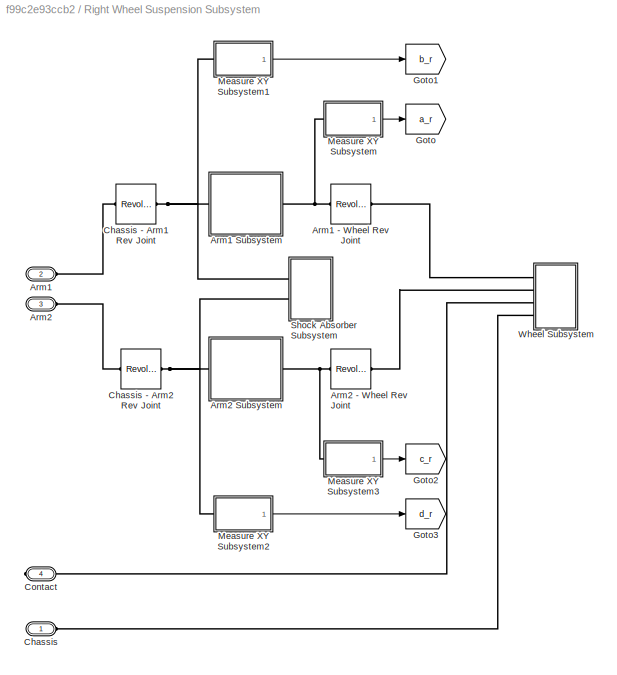
BLOCK [SubSystem] Right Wheel Suspension Subsystem
  Ports = [0, 0, 0, 0, 0, 3, 1]
  RequestExecContextInheritance = off
  Variant = off
BLOCK [PMIOPort] Right Wheel Suspension Subsystem/Arm1
  Port = 2
  Side = Left
BLOCK [Reference] Right Wheel Suspension Subsystem/Arm1 - Wheel Rev Joint  REF=sm_lib/Joints/Revolute Joint
  Ports = [0, 0, 0, 0, 0, 1, 1]
  SourceBlock = sm_lib/Joints/Revolute Joint
  SourceProductBaseCode = MS
  SourceProductName = Simscape Multibody
  SourceType = Revolute Joint
BLOCK [SubSystem] Right Wheel Suspension Subsystem/Arm1 Subsystem
  Ports = [0, 0, 0, 0, 0, 1, 1]
  RequestExecContextInheritance = off
  Variant = off
BLOCK [Reference] Right Wheel Suspension Subsystem/Arm1 Subsystem/Arm  REF=sm_lib/Body Elements/Solid
  Ports = [0, 0, 0, 0, 0, 0, 1]
  SourceBlock = sm_lib/Body Elements/Solid
  SourceProductBaseCode = MS
  SourceProductName = Simscape Multibody
  SourceType = Solid
BLOCK [Reference] Right Wheel Suspension Subsystem/Arm1 Subsystem/Arm to Chassis  REF=sm_lib/Frames and
Transforms/Rigid
Transform
  Ports = [0, 0, 0, 0, 0, 1, 1]
  SourceBlock = sm_lib/Frames and\nTransforms/Rigid\nTransform
  SourceProductBaseCode = MS
  SourceProductName = Simscape Multibody
  SourceType = Rigid\nTransform
BLOCK [Reference] Right Wheel Suspension Subsystem/Arm1 Subsystem/Arm to Wheel  REF=sm_lib/Frames and
Transforms/Rigid
Transform
  Ports = [0, 0, 0, 0, 0, 1, 1]
  SourceBlock = sm_lib/Frames and\nTransforms/Rigid\nTransform
  SourceProductBaseCode = MS
  SourceProductName = Simscape Multibody
  SourceType = Rigid\nTransform
BLOCK [PMIOPort] Right Wheel Suspension Subsystem/Arm1 Subsystem/Chassis
  Port = 1
  Side = Left
BLOCK [PMIOPort] Right Wheel Suspension Subsystem/Arm1 Subsystem/Wheel
  Port = 2
  Side = Right
BLOCK [PMIOPort] Right Wheel Suspension Subsystem/Arm2
  Port = 3
  Side = Left
BLOCK [Reference] Right Wheel Suspension Subsystem/Arm2 - Wheel Rev Joint  REF=sm_lib/Joints/Revolute Joint
  Ports = [0, 0, 0, 0, 0, 1, 1]
  SourceBlock = sm_lib/Joints/Revolute Joint
  SourceProductBaseCode = MS
  SourceProductName = Simscape Multibody
  SourceType = Revolute Joint
BLOCK [SubSystem] Right Wheel Suspension Subsystem/Arm2 Subsystem
  Ports = [0, 0, 0, 0, 0, 1, 1]
  RequestExecContextInheritance = off
  Variant = off
BLOCK [Reference] Right Wheel Suspension Subsystem/Arm2 Subsystem/Arm  REF=sm_lib/Body Elements/Solid
  Ports = [0, 0, 0, 0, 0, 0, 1]
  SourceBlock = sm_lib/Body Elements/Solid
  SourceProductBaseCode = MS
  SourceProductName = Simscape Multibody
  SourceType = Solid
BLOCK [Reference] Right Wheel Suspension Subsystem/Arm2 Subsystem/Arm to Chassis  REF=sm_lib/Frames and
Transforms/Rigid
Transform
  Ports = [0, 0, 0, 0, 0, 1, 1]
  SourceBlock = sm_lib/Frames and\nTransforms/Rigid\nTransform
  SourceProductBaseCode = MS
  SourceProductName = Simscape Multibody
  SourceType = Rigid\nTransform
BLOCK [Reference] Right Wheel Suspension Subsystem/Arm2 Subsystem/Arm to Wheel  REF=sm_lib/Frames and
Transforms/Rigid
Transform
  Ports = [0, 0, 0, 0, 0, 1, 1]
  SourceBlock = sm_lib/Frames and\nTransforms/Rigid\nTransform
  SourceProductBaseCode = MS
  SourceProductName = Simscape Multibody
  SourceType = Rigid\nTransform
BLOCK [PMIOPort] Right Wheel Suspension Subsystem/Arm2 Subsystem/Chassis
  Port = 1
  Side = Left
BLOCK [PMIOPort] Right Wheel Suspension Subsystem/Arm2 Subsystem/Wheel
  Port = 2
  Side = Right
BLOCK [PMIOPort] Right Wheel Suspension Subsystem/Chassis
  Port = 1
  Side = Left
BLOCK [Reference] Right Wheel Suspension Subsystem/Chassis - Arm1 Rev Joint  REF=sm_lib/Joints/Revolute Joint
  Ports = [0, 0, 0, 0, 0, 1, 1]
  SourceBlock = sm_lib/Joints/Revolute Joint
  SourceProductBaseCode = MS
  SourceProductName = Simscape Multibody
  SourceType = Revolute Joint
BLOCK [Reference] Right Wheel Suspension Subsystem/Chassis - Arm2 Rev Joint  REF=sm_lib/Joints/Revolute Joint
  Ports = [0, 0, 0, 0, 0, 1, 1]
  SourceBlock = sm_lib/Joints/Revolute Joint
  SourceProductBaseCode = MS
  SourceProductName = Simscape Multibody
  SourceType = Revolute Joint
BLOCK [PMIOPort] Right Wheel Suspension Subsystem/Contact
  Port = 4
  Side = Right
BLOCK [Goto] Right Wheel Suspension Subsystem/Goto
  GotoTag = a_r
  TagVisibility = global
BLOCK [Goto] Right Wheel Suspension Subsystem/Goto1
  GotoTag = b_r
  TagVisibility = global
BLOCK [Goto] Right Wheel Suspension Subsystem/Goto2
  GotoTag = c_r
  TagVisibility = global
BLOCK [Goto] Right Wheel Suspension Subsystem/Goto3
  GotoTag = d_r
  TagVisibility = global
BLOCK [SubSystem] Right Wheel Suspension Subsystem/Measure XY Subsystem
  Ports = [0, 1, 0, 0, 0, 1]
  RequestExecContextInheritance = off
  Variant = off
BLOCK [PMIOPort] Right Wheel Suspension Subsystem/Measure XY Subsystem/Frame
  Port = 1
  Side = Left
BLOCK [Mux] Right Wheel Suspension Subsystem/Measure XY Subsystem/Mux
  DisplayOption = bar
  Inputs = 2
  Ports = [2, 1]
BLOCK [Reference] Right Wheel Suspension Subsystem/Measure XY Subsystem/PS-Simulink Converter  REF=nesl_utility/PS-Simulink
Converter
  Ports = [0, 1, 0, 0, 0, 1]
  SourceBlock = nesl_utility/PS-Simulink\nConverter
  SourceProductBaseCode = SS
  SourceProductName = Simscape
  SourceType = PS-Simulink\nConverter
BLOCK [Reference] Right Wheel Suspension Subsystem/Measure XY Subsystem/PS-Simulink Converter2  REF=nesl_utility/PS-Simulink
Converter
  Ports = [0, 1, 0, 0, 0, 1]
  SourceBlock = nesl_utility/PS-Simulink\nConverter
  SourceProductBaseCode = SS
  SourceProductName = Simscape
  SourceType = PS-Simulink\nConverter
BLOCK [Reference] Right Wheel Suspension Subsystem/Measure XY Subsystem/Rigid Transform  REF=sm_lib/Frames and
Transforms/Rigid
Transform
  Ports = [0, 0, 0, 0, 0, 1, 1]
  SourceBlock = sm_lib/Frames and\nTransforms/Rigid\nTransform
  SourceProductBaseCode = MS
  SourceProductName = Simscape Multibody
  SourceType = Rigid\nTransform
BLOCK [Reference] Right Wheel Suspension Subsystem/Measure XY Subsystem/Transform Sensor  REF=sm_lib/Frames and
Transforms/Transform
Sensor
  Ports = [0, 0, 0, 0, 0, 1, 3]
  SourceBlock = sm_lib/Frames and\nTransforms/Transform\nSensor
  SourceProductBaseCode = MS
  SourceProductName = Simscape Multibody
  SourceType = Transform\nSensor
BLOCK [Reference] Right Wheel Suspension Subsystem/Measure XY Subsystem/World Frame  REF=sm_lib/Frames and
Transforms/World Frame
  Ports = [0, 0, 0, 0, 0, 0, 1]
  SourceBlock = sm_lib/Frames and\nTransforms/World Frame
  SourceProductBaseCode = MS
  SourceProductName = Simscape Multibody
  SourceType = World Frame
BLOCK [Outport] Right Wheel Suspension Subsystem/Measure XY Subsystem/XY
  IconDisplay = Port number
BLOCK [SubSystem] Right Wheel Suspension Subsystem/Measure XY Subsystem1
  Ports = [0, 1, 0, 0, 0, 1]
  RequestExecContextInheritance = off
  Variant = off
BLOCK [PMIOPort] Right Wheel Suspension Subsystem/Measure XY Subsystem1/Frame
  Port = 1
  Side = Left
BLOCK [Mux] Right Wheel Suspension Subsystem/Measure XY Subsystem1/Mux
  DisplayOption = bar
  Inputs = 2
  Ports = [2, 1]
BLOCK [Reference] Right Wheel Suspension Subsystem/Measure XY Subsystem1/PS-Simulink Converter  REF=nesl_utility/PS-Simulink
Converter
  Ports = [0, 1, 0, 0, 0, 1]
  SourceBlock = nesl_utility/PS-Simulink\nConverter
  SourceProductBaseCode = SS
  SourceProductName = Simscape
  SourceType = PS-Simulink\nConverter
BLOCK [Reference] Right Wheel Suspension Subsystem/Measure XY Subsystem1/PS-Simulink Converter2  REF=nesl_utility/PS-Simulink
Converter
  Ports = [0, 1, 0, 0, 0, 1]
  SourceBlock = nesl_utility/PS-Simulink\nConverter
  SourceProductBaseCode = SS
  SourceProductName = Simscape
  SourceType = PS-Simulink\nConverter
BLOCK [Reference] Right Wheel Suspension Subsystem/Measure XY Subsystem1/Rigid Transform  REF=sm_lib/Frames and
Transforms/Rigid
Transform
  Ports = [0, 0, 0, 0, 0, 1, 1]
  SourceBlock = sm_lib/Frames and\nTransforms/Rigid\nTransform
  SourceProductBaseCode = MS
  SourceProductName = Simscape Multibody
  SourceType = Rigid\nTransform
BLOCK [Reference] Right Wheel Suspension Subsystem/Measure XY Subsystem1/Transform Sensor  REF=sm_lib/Frames and
Transforms/Transform
Sensor
  Ports = [0, 0, 0, 0, 0, 1, 3]
  SourceBlock = sm_lib/Frames and\nTransforms/Transform\nSensor
  SourceProductBaseCode = MS
  SourceProductName = Simscape Multibody
  SourceType = Transform\nSensor
BLOCK [Reference] Right Wheel Suspension Subsystem/Measure XY Subsystem1/World Frame  REF=sm_lib/Frames and
Transforms/World Frame
  Ports = [0, 0, 0, 0, 0, 0, 1]
  SourceBlock = sm_lib/Frames and\nTransforms/World Frame
  SourceProductBaseCode = MS
  SourceProductName = Simscape Multibody
  SourceType = World Frame
BLOCK [Outport] Right Wheel Suspension Subsystem/Measure XY Subsystem1/XY
  IconDisplay = Port number
BLOCK [SubSystem] Right Wheel Suspension Subsystem/Measure XY Subsystem2
  Ports = [0, 1, 0, 0, 0, 1]
  RequestExecContextInheritance = off
  Variant = off
BLOCK [PMIOPort] Right Wheel Suspension Subsystem/Measure XY Subsystem2/Frame
  Port = 1
  Side = Left
BLOCK [Mux] Right Wheel Suspension Subsystem/Measure XY Subsystem2/Mux
  DisplayOption = bar
  Inputs = 2
  Ports = [2, 1]
BLOCK [Reference] Right Wheel Suspension Subsystem/Measure XY Subsystem2/PS-Simulink Converter  REF=nesl_utility/PS-Simulink
Converter
  Ports = [0, 1, 0, 0, 0, 1]
  SourceBlock = nesl_utility/PS-Simulink\nConverter
  SourceProductBaseCode = SS
  SourceProductName = Simscape
  SourceType = PS-Simulink\nConverter
BLOCK [Reference] Right Wheel Suspension Subsystem/Measure XY Subsystem2/PS-Simulink Converter2  REF=nesl_utility/PS-Simulink
Converter
  Ports = [0, 1, 0, 0, 0, 1]
  SourceBlock = nesl_utility/PS-Simulink\nConverter
  SourceProductBaseCode = SS
  SourceProductName = Simscape
  SourceType = PS-Simulink\nConverter
BLOCK [Reference] Right Wheel Suspension Subsystem/Measure XY Subsystem2/Rigid Transform  REF=sm_lib/Frames and
Transforms/Rigid
Transform
  Ports = [0, 0, 0, 0, 0, 1, 1]
  SourceBlock = sm_lib/Frames and\nTransforms/Rigid\nTransform
  SourceProductBaseCode = MS
  SourceProductName = Simscape Multibody
  SourceType = Rigid\nTransform
BLOCK [Reference] Right Wheel Suspension Subsystem/Measure XY Subsystem2/Transform Sensor  REF=sm_lib/Frames and
Transforms/Transform
Sensor
  Ports = [0, 0, 0, 0, 0, 1, 3]
  SourceBlock = sm_lib/Frames and\nTransforms/Transform\nSensor
  SourceProductBaseCode = MS
  SourceProductName = Simscape Multibody
  SourceType = Transform\nSensor
BLOCK [Reference] Right Wheel Suspension Subsystem/Measure XY Subsystem2/World Frame  REF=sm_lib/Frames and
Transforms/World Frame
  Ports = [0, 0, 0, 0, 0, 0, 1]
  SourceBlock = sm_lib/Frames and\nTransforms/World Frame
  SourceProductBaseCode = MS
  SourceProductName = Simscape Multibody
  SourceType = World Frame
BLOCK [Outport] Right Wheel Suspension Subsystem/Measure XY Subsystem2/XY
  IconDisplay = Port number
BLOCK [SubSystem] Right Wheel Suspension Subsystem/Measure XY Subsystem3
  Ports = [0, 1, 0, 0, 0, 1]
  RequestExecContextInheritance = off
  Variant = off
BLOCK [PMIOPort] Right Wheel Suspension Subsystem/Measure XY Subsystem3/Frame
  Port = 1
  Side = Left
BLOCK [Mux] Right Wheel Suspension Subsystem/Measure XY Subsystem3/Mux
  DisplayOption = bar
  Inputs = 2
  Ports = [2, 1]
BLOCK [Reference] Right Wheel Suspension Subsystem/Measure XY Subsystem3/PS-Simulink Converter  REF=nesl_utility/PS-Simulink
Converter
  Ports = [0, 1, 0, 0, 0, 1]
  SourceBlock = nesl_utility/PS-Simulink\nConverter
  SourceProductBaseCode = SS
  SourceProductName = Simscape
  SourceType = PS-Simulink\nConverter
BLOCK [Reference] Right Wheel Suspension Subsystem/Measure XY Subsystem3/PS-Simulink Converter2  REF=nesl_utility/PS-Simulink
Converter
  Ports = [0, 1, 0, 0, 0, 1]
  SourceBlock = nesl_utility/PS-Simulink\nConverter
  SourceProductBaseCode = SS
  SourceProductName = Simscape
  SourceType = PS-Simulink\nConverter
BLOCK [Reference] Right Wheel Suspension Subsystem/Measure XY Subsystem3/Rigid Transform  REF=sm_lib/Frames and
Transforms/Rigid
Transform
  Ports = [0, 0, 0, 0, 0, 1, 1]
  SourceBlock = sm_lib/Frames and\nTransforms/Rigid\nTransform
  SourceProductBaseCode = MS
  SourceProductName = Simscape Multibody
  SourceType = Rigid\nTransform
BLOCK [Reference] Right Wheel Suspension Subsystem/Measure XY Subsystem3/Transform Sensor  REF=sm_lib/Frames and
Transforms/Transform
Sensor
  Ports = [0, 0, 0, 0, 0, 1, 3]
  SourceBlock = sm_lib/Frames and\nTransforms/Transform\nSensor
  SourceProductBaseCode = MS
  SourceProductName = Simscape Multibody
  SourceType = Transform\nSensor
BLOCK [Reference] Right Wheel Suspension Subsystem/Measure XY Subsystem3/World Frame  REF=sm_lib/Frames and
Transforms/World Frame
  Ports = [0, 0, 0, 0, 0, 0, 1]
  SourceBlock = sm_lib/Frames and\nTransforms/World Frame
  SourceProductBaseCode = MS
  SourceProductName = Simscape Multibody
  SourceType = World Frame
BLOCK [Outport] Right Wheel Suspension Subsystem/Measure XY Subsystem3/XY
  IconDisplay = Port number
BLOCK [SubSystem] Right Wheel Suspension Subsystem/Shock Absorber Subsystem
  Ports = [0, 0, 0, 0, 0, 2]
  RequestExecContextInheritance = off
  Variant = off
BLOCK [PMIOPort] Right Wheel Suspension Subsystem/Shock Absorber Subsystem/Arm1
  Port = 1
  Side = Left
BLOCK [PMIOPort] Right Wheel Suspension Subsystem/Shock Absorber Subsystem/Arm2
  Port = 2
  Side = Left
BLOCK [Reference] Right Wheel Suspension Subsystem/Shock Absorber Subsystem/Arm2 to SA  REF=sm_lib/Frames and
Transforms/Rigid
Transform
  Ports = [0, 0, 0, 0, 0, 1, 1]
  SourceBlock = sm_lib/Frames and\nTransforms/Rigid\nTransform
  SourceProductBaseCode = MS
  SourceProductName = Simscape Multibody
  SourceType = Rigid\nTransform
BLOCK [Reference] Right Wheel Suspension Subsystem/Shock Absorber Subsystem/Cylinder  REF=sm_lib/Body Elements/Solid
  Ports = [0, 0, 0, 0, 0, 0, 1]
  SourceBlock = sm_lib/Body Elements/Solid
  SourceProductBaseCode = MS
  SourceProductName = Simscape Multibody
  SourceType = Solid
BLOCK [Reference] Right Wheel Suspension Subsystem/Shock Absorber Subsystem/Piston  REF=sm_lib/Body Elements/Solid
  Ports = [0, 0, 0, 0, 0, 0, 1]
  SourceBlock = sm_lib/Body Elements/Solid
  SourceProductBaseCode = MS
  SourceProductName = Simscape Multibody
  SourceType = Solid
BLOCK [Reference] Right Wheel Suspension Subsystem/Shock Absorber Subsystem/Prismatic Joint  REF=sm_lib/Joints/Prismatic
Joint
  Ports = [0, 0, 0, 0, 0, 1, 1]
  SourceBlock = sm_lib/Joints/Prismatic\nJoint
  SourceProductBaseCode = MS
  SourceProductName = Simscape Multibody
  SourceType = Prismatic\nJoint
BLOCK [Reference] Right Wheel Suspension Subsystem/Shock Absorber Subsystem/Revolute Joint  REF=sm_lib/Joints/Revolute Joint
  Ports = [0, 0, 0, 0, 0, 1, 1]
  SourceBlock = sm_lib/Joints/Revolute Joint
  SourceProductBaseCode = MS
  SourceProductName = Simscape Multibody
  SourceType = Revolute Joint
BLOCK [Reference] Right Wheel Suspension Subsystem/Shock Absorber Subsystem/Revolute Joint1  REF=sm_lib/Joints/Revolute Joint
  Ports = [0, 0, 0, 0, 0, 1, 1]
  SourceBlock = sm_lib/Joints/Revolute Joint
  SourceProductBaseCode = MS
  SourceProductName = Simscape Multibody
  SourceType = Revolute Joint
BLOCK [Reference] Right Wheel Suspension Subsystem/Shock Absorber Subsystem/SA to Arm1  REF=sm_lib/Frames and
Transforms/Rigid
Transform
  Ports = [0, 0, 0, 0, 0, 1, 1]
  SourceBlock = sm_lib/Frames and\nTransforms/Rigid\nTransform
  SourceProductBaseCode = MS
  SourceProductName = Simscape Multibody
  SourceType = Rigid\nTransform
BLOCK [Reference] Right Wheel Suspension Subsystem/Shock Absorber Subsystem/SA to Arm2  REF=sm_lib/Frames and
Transforms/Rigid
Transform
  Ports = [0, 0, 0, 0, 0, 1, 1]
  SourceBlock = sm_lib/Frames and\nTransforms/Rigid\nTransform
  SourceProductBaseCode = MS
  SourceProductName = Simscape Multibody
  SourceType = Rigid\nTransform
BLOCK [SubSystem] Right Wheel Suspension Subsystem/Wheel Subsystem
  Ports = [0, 0, 0, 0, 0, 4]
  RequestExecContextInheritance = off
  Variant = off
BLOCK [Reference] Right Wheel Suspension Subsystem/Wheel Subsystem/Align for Camber Measurment  REF=sm_lib/Frames and
Transforms/Rigid
Transform
  Ports = [0, 0, 0, 0, 0, 1, 1]
  SourceBlock = sm_lib/Frames and\nTransforms/Rigid\nTransform
  SourceProductBaseCode = MS
  SourceProductName = Simscape Multibody
  SourceType = Rigid\nTransform
BLOCK [PMIOPort] Right Wheel Suspension Subsystem/Wheel Subsystem/Arm1
  Port = 1
  Side = Left
BLOCK [PMIOPort] Right Wheel Suspension Subsystem/Wheel Subsystem/Arm2
  Port = 2
  Side = Left
BLOCK [PMIOPort] Right Wheel Suspension Subsystem/Wheel Subsystem/Chassis
  Port = 4
  Side = Left
BLOCK [PMIOPort] Right Wheel Suspension Subsystem/Wheel Subsystem/Contact
  Port = 3
  Side = Left
BLOCK [Goto] Right Wheel Suspension Subsystem/Wheel Subsystem/Goto
  GotoTag = cam_r
  TagVisibility = global
BLOCK [Reference] Right Wheel Suspension Subsystem/Wheel Subsystem/PS-Simulink Converter  REF=nesl_utility/PS-Simulink
Converter
  Ports = [0, 1, 0, 0, 0, 1]
  SourceBlock = nesl_utility/PS-Simulink\nConverter
  SourceProductBaseCode = SS
  SourceProductName = Simscape
  SourceType = PS-Simulink\nConverter
BLOCK [Reference] Right Wheel Suspension Subsystem/Wheel Subsystem/Radians to Degrees  REF=simulink_extras/Transformations/Radians
to Degrees
  Ports = [1, 1]
  SourceBlock = simulink_extras/Transformations/Radians\nto Degrees
  SourceProductBaseCode = SL
  SourceProductName = Simulink
  SourceType = RadiansToDegrees
BLOCK [Reference] Right Wheel Suspension Subsystem/Wheel Subsystem/Rim  REF=sm_lib/Body Elements/Solid
  Ports = [0, 0, 0, 0, 0, 0, 1]
  SourceBlock = sm_lib/Body Elements/Solid
  SourceProductBaseCode = MS
  SourceProductName = Simscape Multibody
  SourceType = Solid
BLOCK [Selector] Right Wheel Suspension Subsystem/Wheel Subsystem/Selector
  IndexOptions = Index vector (dialog),Index vector (dialog)
  Indices = 2,3
  InputPortWidth = 3
  NumberOfDimensions = 2
  OutputSizes = 1,1
  Ports = [1, 1]
BLOCK [Reference] Right Wheel Suspension Subsystem/Wheel Subsystem/Transform Sensor  REF=sm_lib/Frames and
Transforms/Transform
Sensor
  Ports = [0, 0, 0, 0, 0, 1, 2]
  SourceBlock = sm_lib/Frames and\nTransforms/Transform\nSensor
  SourceProductBaseCode = MS
  SourceProductName = Simscape Multibody
  SourceType = Transform\nSensor
BLOCK [Trigonometry] Right Wheel Suspension Subsystem/Wheel Subsystem/Trigonometric Function
  Operator = asin
  Ports = [1, 1]
BLOCK [Reference] Right Wheel Suspension Subsystem/Wheel Subsystem/Wheel  REF=sm_lib/Body Elements/Solid
  Ports = [0, 0, 0, 0, 0, 0, 1]
  SourceBlock = sm_lib/Body Elements/Solid
  SourceProductBaseCode = MS
  SourceProductName = Simscape Multibody
  SourceType = Solid
BLOCK [Reference] Right Wheel Suspension Subsystem/Wheel Subsystem/Wheel to Arm1  REF=sm_lib/Frames and
Transforms/Rigid
Transform
  Ports = [0, 0, 0, 0, 0, 1, 1]
  SourceBlock = sm_lib/Frames and\nTransforms/Rigid\nTransform
  SourceProductBaseCode = MS
  SourceProductName = Simscape Multibody
  SourceType = Rigid\nTransform
BLOCK [Reference] Right Wheel Suspension Subsystem/Wheel Subsystem/Wheel to Arm2  REF=sm_lib/Frames and
Transforms/Rigid
Transform
  Ports = [0, 0, 0, 0, 0, 1, 1]
  SourceBlock = sm_lib/Frames and\nTransforms/Rigid\nTransform
  SourceProductBaseCode = MS
  SourceProductName = Simscape Multibody
  SourceType = Rigid\nTransform
BLOCK [Reference] Right Wheel Suspension Subsystem/Wheel Subsystem/Wheel to Contact  REF=sm_lib/Frames and
Transforms/Rigid
Transform
  Ports = [0, 0, 0, 0, 0, 1, 1]
  SourceBlock = sm_lib/Frames and\nTransforms/Rigid\nTransform
  SourceProductBaseCode = MS
  SourceProductName = Simscape Multibody
  SourceType = Rigid\nTransform
BLOCK [SubSystem] Roll Center Subsystem
  Ports = []
  RequestExecContextInheritance = off
  Variant = off
BLOCK [From] Roll Center Subsystem/From1
  GotoTag = a_l
  TagVisibility = global
BLOCK [From] Roll Center Subsystem/From10
  GotoTag = c_r
  TagVisibility = global
BLOCK [From] Roll Center Subsystem/From11
  GotoTag = d_r
  TagVisibility = global
BLOCK [From] Roll Center Subsystem/From12
  GotoTag = wb_r
  TagVisibility = global
BLOCK [From] Roll Center Subsystem/From3
  GotoTag = b_l
  TagVisibility = global
BLOCK [From] Roll Center Subsystem/From4
  GotoTag = a_r
  TagVisibility = global
BLOCK [From] Roll Center Subsystem/From5
  GotoTag = c_l
  TagVisibility = global
BLOCK [From] Roll Center Subsystem/From7
  GotoTag = d_l
  TagVisibility = global
BLOCK [From] Roll Center Subsystem/From8
  GotoTag = b_r
  TagVisibility = global
BLOCK [From] Roll Center Subsystem/From9
  GotoTag = wb_l
  TagVisibility = global
BLOCK [SubSystem] Roll Center Subsystem/IC VizL
  Ports = [1]
  RequestExecContextInheritance = off
  Variant = off
BLOCK [Demux] Roll Center Subsystem/IC VizL/Demux
  DisplayOption = bar
  Outputs = 2
  Ports = [1, 2]
BLOCK [Inport] Roll Center Subsystem/IC VizL/IC
  IconDisplay = Port number
BLOCK [Reference] Roll Center Subsystem/IC VizL/Mechanism Configuration  REF=sm_lib/Utilities/Mechanism
Configuration
  Ports = [0, 0, 0, 0, 0, 0, 1]
  SourceBlock = sm_lib/Utilities/Mechanism\nConfiguration
  SourceProductBaseCode = MS
  SourceProductName = Simscape Multibody
  SourceType = Mechanism\nConfiguration
BLOCK [Reference] Roll Center Subsystem/IC VizL/Planar Joint  REF=sm_lib/Joints/Planar Joint
  Ports = [0, 0, 0, 0, 0, 3, 1]
  SourceBlock = sm_lib/Joints/Planar Joint
  SourceProductBaseCode = MS
  SourceProductName = Simscape Multibody
  SourceType = Planar Joint
BLOCK [Reference] Roll Center Subsystem/IC VizL/Rigid Transform  REF=sm_lib/Frames and
Transforms/Rigid
Transform
  Ports = [0, 0, 0, 0, 0, 1, 1]
  SourceBlock = sm_lib/Frames and\nTransforms/Rigid\nTransform
  SourceProductBaseCode = MS
  SourceProductName = Simscape Multibody
  SourceType = Rigid\nTransform
BLOCK [Reference] Roll Center Subsystem/IC VizL/Simulink-PS Converter  REF=nesl_utility/Simulink-PS
Converter
  Ports = [1, 0, 0, 0, 0, 0, 1]
  SourceBlock = nesl_utility/Simulink-PS\nConverter
  SourceProductBaseCode = SS
  SourceProductName = Simscape
  SourceType = Simulink-PS\nConverter
BLOCK [Reference] Roll Center Subsystem/IC VizL/Simulink-PS Converter1  REF=nesl_utility/Simulink-PS
Converter
  Ports = [1, 0, 0, 0, 0, 0, 1]
  SourceBlock = nesl_utility/Simulink-PS\nConverter
  SourceProductBaseCode = SS
  SourceProductName = Simscape
  SourceType = Simulink-PS\nConverter
BLOCK [Reference] Roll Center Subsystem/IC VizL/Solid  REF=sm_lib/Body Elements/Solid
  Ports = [0, 0, 0, 0, 0, 0, 1]
  SourceBlock = sm_lib/Body Elements/Solid
  SourceProductBaseCode = MS
  SourceProductName = Simscape Multibody
  SourceType = Solid
BLOCK [Reference] Roll Center Subsystem/IC VizL/Solver Configuration  REF=nesl_utility/Solver
Configuration
  Ports = [0, 0, 0, 0, 0, 0, 1]
  SourceBlock = nesl_utility/Solver\nConfiguration
  SourceProductBaseCode = SS
  SourceProductName = Simscape
  SourceType = Solver\nConfiguration
BLOCK [Reference] Roll Center Subsystem/IC VizL/World Frame  REF=sm_lib/Frames and
Transforms/World Frame
  Ports = [0, 0, 0, 0, 0, 0, 1]
  SourceBlock = sm_lib/Frames and\nTransforms/World Frame
  SourceProductBaseCode = MS
  SourceProductName = Simscape Multibody
  SourceType = World Frame
BLOCK [SubSystem] Roll Center Subsystem/IC VizR
  Ports = [1]
  RequestExecContextInheritance = off
  Variant = off
BLOCK [Demux] Roll Center Subsystem/IC VizR/Demux
  DisplayOption = bar
  Outputs = 2
  Ports = [1, 2]
BLOCK [Inport] Roll Center Subsystem/IC VizR/IC
  IconDisplay = Port number
BLOCK [Reference] Roll Center Subsystem/IC VizR/Mechanism Configuration  REF=sm_lib/Utilities/Mechanism
Configuration
  Ports = [0, 0, 0, 0, 0, 0, 1]
  SourceBlock = sm_lib/Utilities/Mechanism\nConfiguration
  SourceProductBaseCode = MS
  SourceProductName = Simscape Multibody
  SourceType = Mechanism\nConfiguration
BLOCK [Reference] Roll Center Subsystem/IC VizR/Planar Joint  REF=sm_lib/Joints/Planar Joint
  Ports = [0, 0, 0, 0, 0, 3, 1]
  SourceBlock = sm_lib/Joints/Planar Joint
  SourceProductBaseCode = MS
  SourceProductName = Simscape Multibody
  SourceType = Planar Joint
BLOCK [Reference] Roll Center Subsystem/IC VizR/Rigid Transform  REF=sm_lib/Frames and
Transforms/Rigid
Transform
  Ports = [0, 0, 0, 0, 0, 1, 1]
  SourceBlock = sm_lib/Frames and\nTransforms/Rigid\nTransform
  SourceProductBaseCode = MS
  SourceProductName = Simscape Multibody
  SourceType = Rigid\nTransform
BLOCK [Reference] Roll Center Subsystem/IC VizR/Simulink-PS Converter  REF=nesl_utility/Simulink-PS
Converter
  Ports = [1, 0, 0, 0, 0, 0, 1]
  SourceBlock = nesl_utility/Simulink-PS\nConverter
  SourceProductBaseCode = SS
  SourceProductName = Simscape
  SourceType = Simulink-PS\nConverter
BLOCK [Reference] Roll Center Subsystem/IC VizR/Simulink-PS Converter1  REF=nesl_utility/Simulink-PS
Converter
  Ports = [1, 0, 0, 0, 0, 0, 1]
  SourceBlock = nesl_utility/Simulink-PS\nConverter
  SourceProductBaseCode = SS
  SourceProductName = Simscape
  SourceType = Simulink-PS\nConverter
BLOCK [Reference] Roll Center Subsystem/IC VizR/Solid  REF=sm_lib/Body Elements/Solid
  Ports = [0, 0, 0, 0, 0, 0, 1]
  SourceBlock = sm_lib/Body Elements/Solid
  SourceProductBaseCode = MS
  SourceProductName = Simscape Multibody
  SourceType = Solid
BLOCK [Reference] Roll Center Subsystem/IC VizR/Solver Configuration  REF=nesl_utility/Solver
Configuration
  Ports = [0, 0, 0, 0, 0, 0, 1]
  SourceBlock = nesl_utility/Solver\nConfiguration
  SourceProductBaseCode = SS
  SourceProductName = Simscape
  SourceType = Solver\nConfiguration
BLOCK [Reference] Roll Center Subsystem/IC VizR/World Frame  REF=sm_lib/Frames and
Transforms/World Frame
  Ports = [0, 0, 0, 0, 0, 0, 1]
  SourceBlock = sm_lib/Frames and\nTransforms/World Frame
  SourceProductBaseCode = MS
  SourceProductName = Simscape Multibody
  SourceType = World Frame
BLOCK [Scope] Roll Center Subsystem/ICL
  NumInputPorts = 1
  Ports = [1]
  ScopeSpecificationString = C++SS(StrPVP('SaveName','ScopeData1'),StrPVP('LimitDataPoints','on'),StrPVP('DataFormat','Array'),StrPVP('Decimation','1'),StrPVP('BlockParamSampleInput','off'))
BLOCK [Scope] Roll Center Subsystem/ICR
  NumInputPorts = 1
  Ports = [1]
  ScopeSpecificationString = C++SS(StrPVP('SaveName','ScopeData2'),StrPVP('LimitDataPoints','on'),StrPVP('DataFormat','Array'),StrPVP('Decimation','1'),StrPVP('BlockParamSampleInput','off'))
BLOCK [SubSystem] Roll Center Subsystem/MATLAB Function
  ErrorFcn = Stateflow.Translate.translate
  PermitHierarchicalResolution = ExplicitOnly
  Ports = [4, 1]
  RequestExecContextInheritance = off
  SFBlockType = MATLAB Function
  TreatAsAtomicUnit = on
  Variant = off
BLOCK [Demux] Roll Center Subsystem/MATLAB Function/ Demux 
  Outputs = 1
  Ports = [1, 1]
BLOCK [S-Function] Roll Center Subsystem/MATLAB Function/ SFunction 
  EnableBusSupport = on
  FunctionName = sf_sfun
  PortCounts = [4 2]
  Ports = [4, 2]
  SFcnIsStateOwnerBlock = off
  SFunctionDeploymentMode = off
  Tag = Stateflow S-Function suspSystem 2
BLOCK [Terminator] Roll Center Subsystem/MATLAB Function/ Terminator 
BLOCK [Inport] Roll Center Subsystem/MATLAB Function/a
  IconDisplay = Port number
BLOCK [Inport] Roll Center Subsystem/MATLAB Function/b
  IconDisplay = Port number
  Port = 2
BLOCK [Inport] Roll Center Subsystem/MATLAB Function/c
  IconDisplay = Port number
  Port = 3
BLOCK [Inport] Roll Center Subsystem/MATLAB Function/d
  IconDisplay = Port number
  Port = 4
BLOCK [Outport] Roll Center Subsystem/MATLAB Function/ic
  IconDisplay = Port number
BLOCK [SubSystem] Roll Center Subsystem/MATLAB Function1
  ErrorFcn = Stateflow.Translate.translate
  PermitHierarchicalResolution = ExplicitOnly
  Ports = [4, 1]
  RequestExecContextInheritance = off
  SFBlockType = MATLAB Function
  TreatAsAtomicUnit = on
  Variant = off
BLOCK [Demux] Roll Center Subsystem/MATLAB Function1/ Demux 
  Outputs = 1
  Ports = [1, 1]
BLOCK [S-Function] Roll Center Subsystem/MATLAB Function1/ SFunction 
  EnableBusSupport = on
  FunctionName = sf_sfun
  PortCounts = [4 2]
  Ports = [4, 2]
  SFcnIsStateOwnerBlock = off
  SFunctionDeploymentMode = off
  Tag = Stateflow S-Function suspSystem 1
BLOCK [Terminator] Roll Center Subsystem/MATLAB Function1/ Terminator 
BLOCK [Inport] Roll Center Subsystem/MATLAB Function1/a
  IconDisplay = Port number
BLOCK [Inport] Roll Center Subsystem/MATLAB Function1/b
  IconDisplay = Port number
  Port = 2
BLOCK [Inport] Roll Center Subsystem/MATLAB Function1/c
  IconDisplay = Port number
  Port = 3
BLOCK [Inport] Roll Center Subsystem/MATLAB Function1/d
  IconDisplay = Port number
  Port = 4
BLOCK [Outport] Roll Center Subsystem/MATLAB Function1/ic
  IconDisplay = Port number
BLOCK [SubSystem] Roll Center Subsystem/MATLAB Function2
  ErrorFcn = Stateflow.Translate.translate
  PermitHierarchicalResolution = ExplicitOnly
  Ports = [4, 1]
  RequestExecContextInheritance = off
  SFBlockType = MATLAB Function
  TreatAsAtomicUnit = on
  Variant = off
BLOCK [Demux] Roll Center Subsystem/MATLAB Function2/ Demux 
  Outputs = 1
  Ports = [1, 1]
BLOCK [S-Function] Roll Center Subsystem/MATLAB Function2/ SFunction 
  EnableBusSupport = on
  FunctionName = sf_sfun
  PortCounts = [4 2]
  Ports = [4, 2]
  SFcnIsStateOwnerBlock = off
  SFunctionDeploymentMode = off
  Tag = Stateflow S-Function suspSystem 3
BLOCK [Terminator] Roll Center Subsystem/MATLAB Function2/ Terminator 
BLOCK [Inport] Roll Center Subsystem/MATLAB Function2/icl
  IconDisplay = Port number
BLOCK [Inport] Roll Center Subsystem/MATLAB Function2/icr
  IconDisplay = Port number
  Port = 2
BLOCK [Outport] Roll Center Subsystem/MATLAB Function2/rc
  IconDisplay = Port number
BLOCK [Inport] Roll Center Subsystem/MATLAB Function2/wbl
  IconDisplay = Port number
  Port = 3
BLOCK [Inport] Roll Center Subsystem/MATLAB Function2/wbr
  IconDisplay = Port number
  Port = 4
BLOCK [Scope] Roll Center Subsystem/RC
  NumInputPorts = 1
  Ports = [1]
  ScopeSpecificationString = Simulink.scopes.TimeScopeBlockCfg('CurrentConfiguration', extmgr.ConfigurationSet(extmgr.Configuration('Core','General UI',true),extmgr.Configuration('Core','Source UI',true),extmgr.Configuration('Sources','WiredSimulink',true,'DataLoggingVariableName','ScopeData3'),extmgr.Configuration('Visuals','Time Domain',true,'SerializedDisplays',{struct('MinYLimReal','-0.22474','MaxYLimReal','1.50208','YLab...<+1448ch>
BLOCK [SubSystem] Roll Center Subsystem/RC Viz
  Ports = [1]
  RequestExecContextInheritance = off
  Variant = off
BLOCK [Demux] Roll Center Subsystem/RC Viz/Demux
  DisplayOption = bar
  Outputs = 2
  Ports = [1, 2]
BLOCK [Reference] Roll Center Subsystem/RC Viz/Mechanism Configuration  REF=sm_lib/Utilities/Mechanism
Configuration
  Ports = [0, 0, 0, 0, 0, 0, 1]
  SourceBlock = sm_lib/Utilities/Mechanism\nConfiguration
  SourceProductBaseCode = MS
  SourceProductName = Simscape Multibody
  SourceType = Mechanism\nConfiguration
BLOCK [Reference] Roll Center Subsystem/RC Viz/Planar Joint  REF=sm_lib/Joints/Planar Joint
  Ports = [0, 0, 0, 0, 0, 3, 1]
  SourceBlock = sm_lib/Joints/Planar Joint
  SourceProductBaseCode = MS
  SourceProductName = Simscape Multibody
  SourceType = Planar Joint
BLOCK [Inport] Roll Center Subsystem/RC Viz/RC height
  IconDisplay = Port number
BLOCK [Reference] Roll Center Subsystem/RC Viz/Rigid Transform  REF=sm_lib/Frames and
Transforms/Rigid
Transform
  Ports = [0, 0, 0, 0, 0, 1, 1]
  SourceBlock = sm_lib/Frames and\nTransforms/Rigid\nTransform
  SourceProductBaseCode = MS
  SourceProductName = Simscape Multibody
  SourceType = Rigid\nTransform
BLOCK [Reference] Roll Center Subsystem/RC Viz/Simulink-PS Converter  REF=nesl_utility/Simulink-PS
Converter
  Ports = [1, 0, 0, 0, 0, 0, 1]
  SourceBlock = nesl_utility/Simulink-PS\nConverter
  SourceProductBaseCode = SS
  SourceProductName = Simscape
  SourceType = Simulink-PS\nConverter
BLOCK [Reference] Roll Center Subsystem/RC Viz/Simulink-PS Converter1  REF=nesl_utility/Simulink-PS
Converter
  Ports = [1, 0, 0, 0, 0, 0, 1]
  SourceBlock = nesl_utility/Simulink-PS\nConverter
  SourceProductBaseCode = SS
  SourceProductName = Simscape
  SourceType = Simulink-PS\nConverter
BLOCK [Reference] Roll Center Subsystem/RC Viz/Solid  REF=sm_lib/Body Elements/Solid
  Ports = [0, 0, 0, 0, 0, 0, 1]
  SourceBlock = sm_lib/Body Elements/Solid
  SourceProductBaseCode = MS
  SourceProductName = Simscape Multibody
  SourceType = Solid
BLOCK [Reference] Roll Center Subsystem/RC Viz/Solver Configuration  REF=nesl_utility/Solver
Configuration
  Ports = [0, 0, 0, 0, 0, 0, 1]
  SourceBlock = nesl_utility/Solver\nConfiguration
  SourceProductBaseCode = SS
  SourceProductName = Simscape
  SourceType = Solver\nConfiguration
BLOCK [Reference] Roll Center Subsystem/RC Viz/World Frame  REF=sm_lib/Frames and
Transforms/World Frame
  Ports = [0, 0, 0, 0, 0, 0, 1]
  SourceBlock = sm_lib/Frames and\nTransforms/World Frame
  SourceProductBaseCode = MS
  SourceProductName = Simscape Multibody
  SourceType = World Frame
BLOCK [Reference] Solver Configuration  REF=nesl_utility/Solver
Configuration
  Ports = [0, 0, 0, 0, 0, 0, 1]
  SourceBlock = nesl_utility/Solver\nConfiguration
  SourceProductBaseCode = SS
  SourceProductName = Simscape
  SourceType = Solver\nConfiguration
BLOCK [Reference] World Frame  REF=sm_lib/Frames and
Transforms/World Frame
  Ports = [0, 0, 0, 0, 0, 0, 1]
  SourceBlock = sm_lib/Frames and\nTransforms/World Frame
  SourceProductBaseCode = MS
  SourceProductName = Simscape Multibody
  SourceType = World Frame
BLOCK [Reference] World Frame1  REF=sm_lib/Frames and
Transforms/World Frame
  Ports = [0, 0, 0, 0, 0, 0, 1]
  SourceBlock = sm_lib/Frames and\nTransforms/World Frame
  SourceProductBaseCode = MS
  SourceProductName = Simscape Multibody
  SourceType = World Frame
BLOCK [Reference] World Frame2  REF=sm_lib/Frames and
Transforms/World Frame
  Ports = [0, 0, 0, 0, 0, 0, 1]
  SourceBlock = sm_lib/Frames and\nTransforms/World Frame
  SourceProductBaseCode = MS
  SourceProductName = Simscape Multibody
  SourceType = World Frame
ANNOTATION (root): <copyright redacted>
ANNOTATION Left Test Force Subsystem/Calculate Force Subsystem: If (z >= 0) f = 0; Else f = Kw . z + Dw . vz;
ANNOTATION Right Test Force Subsystem/Calculate Force Subsystem: If (z >= 0) f = 0; Else f = Kw . z + Dw . vz;
LINE Camber Subsystem/From1:1 -> Camber Subsystem/Scope1:1
LINE Camber Subsystem/From3:1 -> Camber Subsystem/Scope1:2
LINE Left Motion Profile:1 -> Left Test Force Subsystem:1
LINE Left Test Force Subsystem/Measure XY Subsystem/Mux:1 -> Left Test Force Subsystem/Measure XY Subsystem/XY:1
LINE Left Test Force Subsystem/Measure XY Subsystem/PS-Simulink Converter2:1 -> Left Test Force Subsystem/Measure XY Subsystem/Mux:2
LINE Left Test Force Subsystem/Measure XY Subsystem/PS-Simulink Converter:1 -> Left Test Force Subsystem/Measure XY Subsystem/Mux:1
LINE Left Test Force Subsystem/Measure XY Subsystem:1 -> Left Test Force Subsystem/Goto:1
LINE Left Test Force Subsystem/Motion Profile:1 -> Left Test Force Subsystem/Simulink-PS Converter:1
LINE Left Wheel Suspension Subsystem/Measure XY Subsystem/Mux:1 -> Left Wheel Suspension Subsystem/Measure XY Subsystem/XY:1
LINE Left Wheel Suspension Subsystem/Measure XY Subsystem/PS-Simulink Converter2:1 -> Left Wheel Suspension Subsystem/Measure XY Subsystem/Mux:2
LINE Left Wheel Suspension Subsystem/Measure XY Subsystem/PS-Simulink Converter:1 -> Left Wheel Suspension Subsystem/Measure XY Subsystem/Mux:1
LINE Left Wheel Suspension Subsystem/Measure XY Subsystem1/Mux:1 -> Left Wheel Suspension Subsystem/Measure XY Subsystem1/XY:1
LINE Left Wheel Suspension Subsystem/Measure XY Subsystem1/PS-Simulink Converter2:1 -> Left Wheel Suspension Subsystem/Measure XY Subsystem1/Mux:2
LINE Left Wheel Suspension Subsystem/Measure XY Subsystem1/PS-Simulink Converter:1 -> Left Wheel Suspension Subsystem/Measure XY Subsystem1/Mux:1
LINE Left Wheel Suspension Subsystem/Measure XY Subsystem1:1 -> Left Wheel Suspension Subsystem/Goto1:1
LINE Left Wheel Suspension Subsystem/Measure XY Subsystem2/Mux:1 -> Left Wheel Suspension Subsystem/Measure XY Subsystem2/XY:1
LINE Left Wheel Suspension Subsystem/Measure XY Subsystem2/PS-Simulink Converter2:1 -> Left Wheel Suspension Subsystem/Measure XY Subsystem2/Mux:2
LINE Left Wheel Suspension Subsystem/Measure XY Subsystem2/PS-Simulink Converter:1 -> Left Wheel Suspension Subsystem/Measure XY Subsystem2/Mux:1
LINE Left Wheel Suspension Subsystem/Measure XY Subsystem2:1 -> Left Wheel Suspension Subsystem/Goto3:1
LINE Left Wheel Suspension Subsystem/Measure XY Subsystem3/Mux:1 -> Left Wheel Suspension Subsystem/Measure XY Subsystem3/XY:1
LINE Left Wheel Suspension Subsystem/Measure XY Subsystem3/PS-Simulink Converter2:1 -> Left Wheel Suspension Subsystem/Measure XY Subsystem3/Mux:2
LINE Left Wheel Suspension Subsystem/Measure XY Subsystem3/PS-Simulink Converter:1 -> Left Wheel Suspension Subsystem/Measure XY Subsystem3/Mux:1
LINE Left Wheel Suspension Subsystem/Measure XY Subsystem3:1 -> Left Wheel Suspension Subsystem/Goto2:1
LINE Left Wheel Suspension Subsystem/Measure XY Subsystem:1 -> Left Wheel Suspension Subsystem/Goto:1
LINE Left Wheel Suspension Subsystem/Wheel Subsystem/PS-Simulink Converter:1 -> Left Wheel Suspension Subsystem/Wheel Subsystem/Selector:1
LINE Left Wheel Suspension Subsystem/Wheel Subsystem/Radians to Degrees:1 -> Left Wheel Suspension Subsystem/Wheel Subsystem/Goto:1
LINE Left Wheel Suspension Subsystem/Wheel Subsystem/Selector:1 -> Left Wheel Suspension Subsystem/Wheel Subsystem/Trigonometric Function:1
LINE Left Wheel Suspension Subsystem/Wheel Subsystem/Trigonometric Function:1 -> Left Wheel Suspension Subsystem/Wheel Subsystem/Radians to Degrees:1
LINE Right Motion Profile:1 -> Right Test Force Subsystem:1
LINE Right Test Force Subsystem/Measure XY Subsystem/Mux:1 -> Right Test Force Subsystem/Measure XY Subsystem/XY:1
LINE Right Test Force Subsystem/Measure XY Subsystem/PS-Simulink Converter2:1 -> Right Test Force Subsystem/Measure XY Subsystem/Mux:2
LINE Right Test Force Subsystem/Measure XY Subsystem/PS-Simulink Converter:1 -> Right Test Force Subsystem/Measure XY Subsystem/Mux:1
LINE Right Test Force Subsystem/Measure XY Subsystem:1 -> Right Test Force Subsystem/Goto:1
LINE Right Test Force Subsystem/Motion Profile:1 -> Right Test Force Subsystem/Simulink-PS Converter:1
LINE Right Wheel Suspension Subsystem/Measure XY Subsystem/Mux:1 -> Right Wheel Suspension Subsystem/Measure XY Subsystem/XY:1
LINE Right Wheel Suspension Subsystem/Measure XY Subsystem/PS-Simulink Converter2:1 -> Right Wheel Suspension Subsystem/Measure XY Subsystem/Mux:2
LINE Right Wheel Suspension Subsystem/Measure XY Subsystem/PS-Simulink Converter:1 -> Right Wheel Suspension Subsystem/Measure XY Subsystem/Mux:1
LINE Right Wheel Suspension Subsystem/Measure XY Subsystem1/Mux:1 -> Right Wheel Suspension Subsystem/Measure XY Subsystem1/XY:1
LINE Right Wheel Suspension Subsystem/Measure XY Subsystem1/PS-Simulink Converter2:1 -> Right Wheel Suspension Subsystem/Measure XY Subsystem1/Mux:2
LINE Right Wheel Suspension Subsystem/Measure XY Subsystem1/PS-Simulink Converter:1 -> Right Wheel Suspension Subsystem/Measure XY Subsystem1/Mux:1
LINE Right Wheel Suspension Subsystem/Measure XY Subsystem1:1 -> Right Wheel Suspension Subsystem/Goto1:1
LINE Right Wheel Suspension Subsystem/Measure XY Subsystem2/Mux:1 -> Right Wheel Suspension Subsystem/Measure XY Subsystem2/XY:1
LINE Right Wheel Suspension Subsystem/Measure XY Subsystem2/PS-Simulink Converter2:1 -> Right Wheel Suspension Subsystem/Measure XY Subsystem2/Mux:2
LINE Right Wheel Suspension Subsystem/Measure XY Subsystem2/PS-Simulink Converter:1 -> Right Wheel Suspension Subsystem/Measure XY Subsystem2/Mux:1
LINE Right Wheel Suspension Subsystem/Measure XY Subsystem2:1 -> Right Wheel Suspension Subsystem/Goto3:1
LINE Right Wheel Suspension Subsystem/Measure XY Subsystem3/Mux:1 -> Right Wheel Suspension Subsystem/Measure XY Subsystem3/XY:1
LINE Right Wheel Suspension Subsystem/Measure XY Subsystem3/PS-Simulink Converter2:1 -> Right Wheel Suspension Subsystem/Measure XY Subsystem3/Mux:2
LINE Right Wheel Suspension Subsystem/Measure XY Subsystem3/PS-Simulink Converter:1 -> Right Wheel Suspension Subsystem/Measure XY Subsystem3/Mux:1
LINE Right Wheel Suspension Subsystem/Measure XY Subsystem3:1 -> Right Wheel Suspension Subsystem/Goto2:1
LINE Right Wheel Suspension Subsystem/Measure XY Subsystem:1 -> Right Wheel Suspension Subsystem/Goto:1
LINE Right Wheel Suspension Subsystem/Wheel Subsystem/PS-Simulink Converter:1 -> Right Wheel Suspension Subsystem/Wheel Subsystem/Selector:1
LINE Right Wheel Suspension Subsystem/Wheel Subsystem/Radians to Degrees:1 -> Right Wheel Suspension Subsystem/Wheel Subsystem/Goto:1
LINE Right Wheel Suspension Subsystem/Wheel Subsystem/Selector:1 -> Right Wheel Suspension Subsystem/Wheel Subsystem/Trigonometric Function:1
LINE Right Wheel Suspension Subsystem/Wheel Subsystem/Trigonometric Function:1 -> Right Wheel Suspension Subsystem/Wheel Subsystem/Radians to Degrees:1
LINE Roll Center Subsystem/From10:1 -> Roll Center Subsystem/MATLAB Function1:3
LINE Roll Center Subsystem/From11:1 -> Roll Center Subsystem/MATLAB Function1:4
LINE Roll Center Subsystem/From12:1 -> Roll Center Subsystem/MATLAB Function2:4
LINE Roll Center Subsystem/From1:1 -> Roll Center Subsystem/MATLAB Function:1
LINE Roll Center Subsystem/From3:1 -> Roll Center Subsystem/MATLAB Function:2
LINE Roll Center Subsystem/From4:1 -> Roll Center Subsystem/MATLAB Function1:1
LINE Roll Center Subsystem/From5:1 -> Roll Center Subsystem/MATLAB Function:3
LINE Roll Center Subsystem/From7:1 -> Roll Center Subsystem/MATLAB Function:4
LINE Roll Center Subsystem/From8:1 -> Roll Center Subsystem/MATLAB Function1:2
LINE Roll Center Subsystem/From9:1 -> Roll Center Subsystem/MATLAB Function2:3
LINE Roll Center Subsystem/IC VizL/Demux:1 -> Roll Center Subsystem/IC VizL/Simulink-PS Converter:1
LINE Roll Center Subsystem/IC VizL/Demux:2 -> Roll Center Subsystem/IC VizL/Simulink-PS Converter1:1
LINE Roll Center Subsystem/IC VizL/IC:1 -> Roll Center Subsystem/IC VizL/Demux:1
LINE Roll Center Subsystem/IC VizR/Demux:1 -> Roll Center Subsystem/IC VizR/Simulink-PS Converter:1
LINE Roll Center Subsystem/IC VizR/Demux:2 -> Roll Center Subsystem/IC VizR/Simulink-PS Converter1:1
LINE Roll Center Subsystem/IC VizR/IC:1 -> Roll Center Subsystem/IC VizR/Demux:1
NET Roll Center Subsystem/MATLAB Function1:1 -> Roll Center Subsystem/IC VizR:1, Roll Center Subsystem/ICR:1, Roll Center Subsystem/MATLAB Function2:2
NET Roll Center Subsystem/MATLAB Function2:1 -> Roll Center Subsystem/RC Viz:1, Roll Center Subsystem/RC:1
NET Roll Center Subsystem/MATLAB Function:1 -> Roll Center Subsystem/IC VizL:1, Roll Center Subsystem/ICL:1, Roll Center Subsystem/MATLAB Function2:1
LINE Roll Center Subsystem/RC Viz/Demux:1 -> Roll Center Subsystem/RC Viz/Simulink-PS Converter:1
LINE Roll Center Subsystem/RC Viz/Demux:2 -> Roll Center Subsystem/RC Viz/Simulink-PS Converter1:1
LINE Roll Center Subsystem/RC Viz/RC height:1 -> Roll Center Subsystem/RC Viz/Demux:1
PLINE Chassis DoF Subsystem/B:RConn1 -- Chassis DoF Subsystem/World to Chassis:LConn1
PLINE Chassis DoF Subsystem/Chassis to World:LConn1 -- Chassis DoF Subsystem/F:RConn1
PLINE Chassis DoF Subsystem/Chassis to World:RConn1 -- Chassis DoF Subsystem/Planar Joint:RConn1
PLINE Chassis DoF Subsystem/Planar Joint:LConn1 -- Chassis DoF Subsystem/World to Chassis:RConn1
PNET net1: Chassis DoF Subsystem:LConn1 -- Mechanism Configuration:RConn1 -- Solver Configuration:RConn1 -- World Frame:RConn1
PLINE Chassis DoF Subsystem:RConn1 -- Chassis Subsystem:LConn1
PLINE Chassis Subsystem/Arm1 Left:RConn1 -- Chassis Subsystem/Chassis to Arm1 Left:RConn1
PLINE Chassis Subsystem/Arm1 Right:RConn1 -- Chassis Subsystem/Chassis to Arm1 Right:RConn1
PLINE Chassis Subsystem/Arm2 Left:RConn1 -- Chassis Subsystem/Chassis to Arm2 Left:RConn1
PLINE Chassis Subsystem/Arm2 Right:RConn1 -- Chassis Subsystem/Chassis to Arm2 Right:RConn1
PNET net2: Chassis Subsystem/Chassis Center:RConn1 -- Chassis Subsystem/Chassis Load:RConn1 -- Chassis Subsystem/Chassis to Arm1 Left:LConn1 -- Chassis Subsystem/Chassis to Arm1 Right:LConn1 -- Chassis Subsystem/Chassis to Arm2 Left:LConn1 -- Chassis Subsystem/Chassis to Arm2 Right:LConn1 -- Chassis Subsystem/Ref:RConn1
PLINE Chassis Subsystem:RConn1 -- Left Wheel Suspension Subsystem:LConn1
PLINE Chassis Subsystem:RConn2 -- Left Wheel Suspension Subsystem:LConn2
PNET net3: Chassis Subsystem:RConn3 -- Left Wheel Suspension Subsystem:LConn3 -- Right Wheel Suspension Subsystem:LConn1
PLINE Chassis Subsystem:RConn4 -- Right Wheel Suspension Subsystem:LConn2
PLINE Chassis Subsystem:RConn5 -- Right Wheel Suspension Subsystem:LConn3
PLINE Left Test Force Subsystem/Calculate Force Subsystem/PS Add:LConn1 -- Left Test Force Subsystem/Calculate Force Subsystem/PS Gain:RConn1
PLINE Left Test Force Subsystem/Calculate Force Subsystem/PS Add:LConn2 -- Left Test Force Subsystem/Calculate Force Subsystem/PS Gain1:RConn1
PLINE Left Test Force Subsystem/Calculate Force Subsystem/PS Add:RConn1 -- Left Test Force Subsystem/Calculate Force Subsystem/PS Switch:LConn3
PLINE Left Test Force Subsystem/Calculate Force Subsystem/PS Constant:RConn1 -- Left Test Force Subsystem/Calculate Force Subsystem/PS Switch:LConn1
PLINE Left Test Force Subsystem/Calculate Force Subsystem/PS Gain1:LConn1 -- Left Test Force Subsystem/Calculate Force Subsystem/vz:RConn1
PNET net4: Left Test Force Subsystem/Calculate Force Subsystem/PS Gain:LConn1 -- Left Test Force Subsystem/Calculate Force Subsystem/PS Switch:LConn2 -- Left Test Force Subsystem/Calculate Force Subsystem/z:RConn1
PLINE Left Test Force Subsystem/Calculate Force Subsystem/PS Switch:RConn1 -- Left Test Force Subsystem/Calculate Force Subsystem/f:RConn1
PLINE Left Test Force Subsystem/Calculate Force Subsystem:LConn1 -- Left Test Force Subsystem/Transform Sensor:RConn2
PLINE Left Test Force Subsystem/Calculate Force Subsystem:LConn2 -- Left Test Force Subsystem/Transform Sensor:RConn3
PLINE Left Test Force Subsystem/Calculate Force Subsystem:RConn1 -- Left Test Force Subsystem/External Force and Torque:LConn1
PNET net5: Left Test Force Subsystem/External Force and Torque:RConn1 -- Left Test Force Subsystem/Force:RConn1 -- Left Test Force Subsystem/Measure XY Subsystem:LConn1 -- Left Test Force Subsystem/Planar Joint:RConn1 -- Left Test Force Subsystem/Transform Sensor:RConn1
PLINE Left Test Force Subsystem/Measure XY Subsystem/Frame:RConn1 -- Left Test Force Subsystem/Measure XY Subsystem/Transform Sensor:RConn1
PLINE Left Test Force Subsystem/Measure XY Subsystem/PS-Simulink Converter2:LConn1 -- Left Test Force Subsystem/Measure XY Subsystem/Transform Sensor:RConn3
PLINE Left Test Force Subsystem/Measure XY Subsystem/PS-Simulink Converter:LConn1 -- Left Test Force Subsystem/Measure XY Subsystem/Transform Sensor:RConn2
PLINE Left Test Force Subsystem/Measure XY Subsystem/Rigid Transform:LConn1 -- Left Test Force Subsystem/Measure XY Subsystem/World Frame:RConn1
PLINE Left Test Force Subsystem/Measure XY Subsystem/Rigid Transform:RConn1 -- Left Test Force Subsystem/Measure XY Subsystem/Transform Sensor:LConn1
PNET net6: Left Test Force Subsystem/Planar Joint:LConn1 -- Left Test Force Subsystem/Platform Subsystem:RConn1 -- Left Test Force Subsystem/Transform Sensor:LConn1
PNET net7: Left Test Force Subsystem/Platform Subsystem/Platform to Wheel:LConn1 -- Left Test Force Subsystem/Platform Subsystem/Platform to World:RConn1 -- Left Test Force Subsystem/Platform Subsystem/Test Platform:RConn1
PLINE Left Test Force Subsystem/Platform Subsystem/Platform to Wheel:RConn1 -- Left Test Force Subsystem/Platform Subsystem/Wheel:RConn1
PLINE Left Test Force Subsystem/Platform Subsystem/Platform to World:LConn1 -- Left Test Force Subsystem/Platform Subsystem/Ref:RConn1
PLINE Left Test Force Subsystem/Platform Subsystem:LConn1 -- Left Test Force Subsystem/Prismatic Joint:RConn1
PLINE Left Test Force Subsystem/Prismatic Joint:LConn1 -- Left Test Force Subsystem/World to Platform:RConn1
PLINE Left Test Force Subsystem/Prismatic Joint:LConn2 -- Left Test Force Subsystem/Simulink-PS Converter:RConn1
PLINE Left Test Force Subsystem/World Ref:RConn1 -- Left Test Force Subsystem/World to Platform:LConn1
PLINE Left Test Force Subsystem:LConn1 -- World Frame2:RConn1
PLINE Left Test Force Subsystem:RConn1 -- Left Wheel Suspension Subsystem:RConn1
PNET net8: Left Wheel Suspension Subsystem/Arm1 - Wheel Rev Joint:LConn1 -- Left Wheel Suspension Subsystem/Arm1 Subsystem:RConn1 -- Left Wheel Suspension Subsystem/Measure XY Subsystem:LConn1
PLINE Left Wheel Suspension Subsystem/Arm1 - Wheel Rev Joint:RConn1 -- Left Wheel Suspension Subsystem/Wheel Subsystem:LConn1
PNET net9: Left Wheel Suspension Subsystem/Arm1 Subsystem/Arm to Chassis:LConn1 -- Left Wheel Suspension Subsystem/Arm1 Subsystem/Arm to Wheel:LConn1 -- Left Wheel Suspension Subsystem/Arm1 Subsystem/Arm:RConn1
PLINE Left Wheel Suspension Subsystem/Arm1 Subsystem/Arm to Chassis:RConn1 -- Left Wheel Suspension Subsystem/Arm1 Subsystem/Chassis:RConn1
PLINE Left Wheel Suspension Subsystem/Arm1 Subsystem/Arm to Wheel:RConn1 -- Left Wheel Suspension Subsystem/Arm1 Subsystem/Wheel:RConn1
PNET net10: Left Wheel Suspension Subsystem/Arm1 Subsystem:LConn1 -- Left Wheel Suspension Subsystem/Chassis - Arm1 Rev Joint:RConn1 -- Left Wheel Suspension Subsystem/Measure XY Subsystem1:LConn1 -- Left Wheel Suspension Subsystem/Shock Absorber Subsystem:LConn1
PLINE Left Wheel Suspension Subsystem/Arm1:RConn1 -- Left Wheel Suspension Subsystem/Chassis - Arm1 Rev Joint:LConn1
PNET net11: Left Wheel Suspension Subsystem/Arm2 - Wheel Rev Joint:LConn1 -- Left Wheel Suspension Subsystem/Arm2 Subsystem:RConn1 -- Left Wheel Suspension Subsystem/Measure XY Subsystem3:LConn1
PLINE Left Wheel Suspension Subsystem/Arm2 - Wheel Rev Joint:RConn1 -- Left Wheel Suspension Subsystem/Wheel Subsystem:LConn2
PNET net12: Left Wheel Suspension Subsystem/Arm2 Subsystem/Arm to Chassis:LConn1 -- Left Wheel Suspension Subsystem/Arm2 Subsystem/Arm to Wheel:LConn1 -- Left Wheel Suspension Subsystem/Arm2 Subsystem/Arm:RConn1
PLINE Left Wheel Suspension Subsystem/Arm2 Subsystem/Arm to Chassis:RConn1 -- Left Wheel Suspension Subsystem/Arm2 Subsystem/Chassis:RConn1
PLINE Left Wheel Suspension Subsystem/Arm2 Subsystem/Arm to Wheel:RConn1 -- Left Wheel Suspension Subsystem/Arm2 Subsystem/Wheel:RConn1
PNET net13: Left Wheel Suspension Subsystem/Arm2 Subsystem:LConn1 -- Left Wheel Suspension Subsystem/Chassis - Arm2 Rev Joint:RConn1 -- Left Wheel Suspension Subsystem/Measure XY Subsystem2:LConn1 -- Left Wheel Suspension Subsystem/Shock Absorber Subsystem:LConn2
PLINE Left Wheel Suspension Subsystem/Arm2:RConn1 -- Left Wheel Suspension Subsystem/Chassis - Arm2 Rev Joint:LConn1
PLINE Left Wheel Suspension Subsystem/Chassis:RConn1 -- Left Wheel Suspension Subsystem/Wheel Subsystem:LConn4
PLINE Left Wheel Suspension Subsystem/Contact:RConn1 -- Left Wheel Suspension Subsystem/Wheel Subsystem:LConn3
PLINE Left Wheel Suspension Subsystem/Measure XY Subsystem/Frame:RConn1 -- Left Wheel Suspension Subsystem/Measure XY Subsystem/Transform Sensor:RConn1
PLINE Left Wheel Suspension Subsystem/Measure XY Subsystem/PS-Simulink Converter2:LConn1 -- Left Wheel Suspension Subsystem/Measure XY Subsystem/Transform Sensor:RConn3
PLINE Left Wheel Suspension Subsystem/Measure XY Subsystem/PS-Simulink Converter:LConn1 -- Left Wheel Suspension Subsystem/Measure XY Subsystem/Transform Sensor:RConn2
PLINE Left Wheel Suspension Subsystem/Measure XY Subsystem/Rigid Transform:LConn1 -- Left Wheel Suspension Subsystem/Measure XY Subsystem/World Frame:RConn1
PLINE Left Wheel Suspension Subsystem/Measure XY Subsystem/Rigid Transform:RConn1 -- Left Wheel Suspension Subsystem/Measure XY Subsystem/Transform Sensor:LConn1
PLINE Left Wheel Suspension Subsystem/Measure XY Subsystem1/Frame:RConn1 -- Left Wheel Suspension Subsystem/Measure XY Subsystem1/Transform Sensor:RConn1
PLINE Left Wheel Suspension Subsystem/Measure XY Subsystem1/PS-Simulink Converter2:LConn1 -- Left Wheel Suspension Subsystem/Measure XY Subsystem1/Transform Sensor:RConn3
PLINE Left Wheel Suspension Subsystem/Measure XY Subsystem1/PS-Simulink Converter:LConn1 -- Left Wheel Suspension Subsystem/Measure XY Subsystem1/Transform Sensor:RConn2
PLINE Left Wheel Suspension Subsystem/Measure XY Subsystem1/Rigid Transform:LConn1 -- Left Wheel Suspension Subsystem/Measure XY Subsystem1/World Frame:RConn1
PLINE Left Wheel Suspension Subsystem/Measure XY Subsystem1/Rigid Transform:RConn1 -- Left Wheel Suspension Subsystem/Measure XY Subsystem1/Transform Sensor:LConn1
PLINE Left Wheel Suspension Subsystem/Measure XY Subsystem2/Frame:RConn1 -- Left Wheel Suspension Subsystem/Measure XY Subsystem2/Transform Sensor:RConn1
PLINE Left Wheel Suspension Subsystem/Measure XY Subsystem2/PS-Simulink Converter2:LConn1 -- Left Wheel Suspension Subsystem/Measure XY Subsystem2/Transform Sensor:RConn3
PLINE Left Wheel Suspension Subsystem/Measure XY Subsystem2/PS-Simulink Converter:LConn1 -- Left Wheel Suspension Subsystem/Measure XY Subsystem2/Transform Sensor:RConn2
PLINE Left Wheel Suspension Subsystem/Measure XY Subsystem2/Rigid Transform:LConn1 -- Left Wheel Suspension Subsystem/Measure XY Subsystem2/World Frame:RConn1
PLINE Left Wheel Suspension Subsystem/Measure XY Subsystem2/Rigid Transform:RConn1 -- Left Wheel Suspension Subsystem/Measure XY Subsystem2/Transform Sensor:LConn1
PLINE Left Wheel Suspension Subsystem/Measure XY Subsystem3/Frame:RConn1 -- Left Wheel Suspension Subsystem/Measure XY Subsystem3/Transform Sensor:RConn1
PLINE Left Wheel Suspension Subsystem/Measure XY Subsystem3/PS-Simulink Converter2:LConn1 -- Left Wheel Suspension Subsystem/Measure XY Subsystem3/Transform Sensor:RConn3
PLINE Left Wheel Suspension Subsystem/Measure XY Subsystem3/PS-Simulink Converter:LConn1 -- Left Wheel Suspension Subsystem/Measure XY Subsystem3/Transform Sensor:RConn2
PLINE Left Wheel Suspension Subsystem/Measure XY Subsystem3/Rigid Transform:LConn1 -- Left Wheel Suspension Subsystem/Measure XY Subsystem3/World Frame:RConn1
PLINE Left Wheel Suspension Subsystem/Measure XY Subsystem3/Rigid Transform:RConn1 -- Left Wheel Suspension Subsystem/Measure XY Subsystem3/Transform Sensor:LConn1
PLINE Left Wheel Suspension Subsystem/Shock Absorber Subsystem/Arm1:RConn1 -- Left Wheel Suspension Subsystem/Shock Absorber Subsystem/Revolute Joint:LConn1
PLINE Left Wheel Suspension Subsystem/Shock Absorber Subsystem/Arm2 to SA:LConn1 -- Left Wheel Suspension Subsystem/Shock Absorber Subsystem/Arm2:RConn1
PLINE Left Wheel Suspension Subsystem/Shock Absorber Subsystem/Arm2 to SA:RConn1 -- Left Wheel Suspension Subsystem/Shock Absorber Subsystem/Revolute Joint1:LConn1
PNET net14: Left Wheel Suspension Subsystem/Shock Absorber Subsystem/Cylinder:RConn1 -- Left Wheel Suspension Subsystem/Shock Absorber Subsystem/Prismatic Joint:LConn1 -- Left Wheel Suspension Subsystem/Shock Absorber Subsystem/SA to Arm1:LConn1
PNET net15: Left Wheel Suspension Subsystem/Shock Absorber Subsystem/Piston:RConn1 -- Left Wheel Suspension Subsystem/Shock Absorber Subsystem/Prismatic Joint:RConn1 -- Left Wheel Suspension Subsystem/Shock Absorber Subsystem/SA to Arm2:LConn1
PLINE Left Wheel Suspension Subsystem/Shock Absorber Subsystem/Revolute Joint1:RConn1 -- Left Wheel Suspension Subsystem/Shock Absorber Subsystem/SA to Arm2:RConn1
PLINE Left Wheel Suspension Subsystem/Shock Absorber Subsystem/Revolute Joint:RConn1 -- Left Wheel Suspension Subsystem/Shock Absorber Subsystem/SA to Arm1:RConn1
PNET net16: Left Wheel Suspension Subsystem/Wheel Subsystem/Align for Camber Measurment:LConn1 -- Left Wheel Suspension Subsystem/Wheel Subsystem/Rim:RConn1 -- Left Wheel Suspension Subsystem/Wheel Subsystem/Wheel to Arm1:LConn1 -- Left Wheel Suspension Subsystem/Wheel Subsystem/Wheel to Arm2:LConn1 -- Left Wheel Suspension Subsystem/Wheel Subsystem/Wheel to Contact:LConn1 -- Left Wheel Suspension Subsystem/Wheel Subsystem/Wheel:RConn1
PLINE Left Wheel Suspension Subsystem/Wheel Subsystem/Align for Camber Measurment:RConn1 -- Left Wheel Suspension Subsystem/Wheel Subsystem/Transform Sensor:LConn1
PLINE Left Wheel Suspension Subsystem/Wheel Subsystem/Arm1:RConn1 -- Left Wheel Suspension Subsystem/Wheel Subsystem/Wheel to Arm1:RConn1
PLINE Left Wheel Suspension Subsystem/Wheel Subsystem/Arm2:RConn1 -- Left Wheel Suspension Subsystem/Wheel Subsystem/Wheel to Arm2:RConn1
PLINE Left Wheel Suspension Subsystem/Wheel Subsystem/Chassis:RConn1 -- Left Wheel Suspension Subsystem/Wheel Subsystem/Transform Sensor:RConn1
PLINE Left Wheel Suspension Subsystem/Wheel Subsystem/Contact:RConn1 -- Left Wheel Suspension Subsystem/Wheel Subsystem/Wheel to Contact:RConn1
PLINE Left Wheel Suspension Subsystem/Wheel Subsystem/PS-Simulink Converter:LConn1 -- Left Wheel Suspension Subsystem/Wheel Subsystem/Transform Sensor:RConn2
PLINE Right Test Force Subsystem/Calculate Force Subsystem/PS Add:LConn1 -- Right Test Force Subsystem/Calculate Force Subsystem/PS Gain:RConn1
PLINE Right Test Force Subsystem/Calculate Force Subsystem/PS Add:LConn2 -- Right Test Force Subsystem/Calculate Force Subsystem/PS Gain1:RConn1
PLINE Right Test Force Subsystem/Calculate Force Subsystem/PS Add:RConn1 -- Right Test Force Subsystem/Calculate Force Subsystem/PS Switch:LConn3
PLINE Right Test Force Subsystem/Calculate Force Subsystem/PS Constant:RConn1 -- Right Test Force Subsystem/Calculate Force Subsystem/PS Switch:LConn1
PLINE Right Test Force Subsystem/Calculate Force Subsystem/PS Gain1:LConn1 -- Right Test Force Subsystem/Calculate Force Subsystem/vz:RConn1
PNET net17: Right Test Force Subsystem/Calculate Force Subsystem/PS Gain:LConn1 -- Right Test Force Subsystem/Calculate Force Subsystem/PS Switch:LConn2 -- Right Test Force Subsystem/Calculate Force Subsystem/z:RConn1
PLINE Right Test Force Subsystem/Calculate Force Subsystem/PS Switch:RConn1 -- Right Test Force Subsystem/Calculate Force Subsystem/f:RConn1
PLINE Right Test Force Subsystem/Calculate Force Subsystem:LConn1 -- Right Test Force Subsystem/Transform Sensor:RConn2
PLINE Right Test Force Subsystem/Calculate Force Subsystem:LConn2 -- Right Test Force Subsystem/Transform Sensor:RConn3
PLINE Right Test Force Subsystem/Calculate Force Subsystem:RConn1 -- Right Test Force Subsystem/External Force and Torque:LConn1
PNET net18: Right Test Force Subsystem/External Force and Torque:RConn1 -- Right Test Force Subsystem/Force:RConn1 -- Right Test Force Subsystem/Measure XY Subsystem:LConn1 -- Right Test Force Subsystem/Planar Joint:RConn1 -- Right Test Force Subsystem/Transform Sensor:RConn1
PLINE Right Test Force Subsystem/Measure XY Subsystem/Frame:RConn1 -- Right Test Force Subsystem/Measure XY Subsystem/Transform Sensor:RConn1
PLINE Right Test Force Subsystem/Measure XY Subsystem/PS-Simulink Converter2:LConn1 -- Right Test Force Subsystem/Measure XY Subsystem/Transform Sensor:RConn3
PLINE Right Test Force Subsystem/Measure XY Subsystem/PS-Simulink Converter:LConn1 -- Right Test Force Subsystem/Measure XY Subsystem/Transform Sensor:RConn2
PLINE Right Test Force Subsystem/Measure XY Subsystem/Rigid Transform:LConn1 -- Right Test Force Subsystem/Measure XY Subsystem/World Frame:RConn1
PLINE Right Test Force Subsystem/Measure XY Subsystem/Rigid Transform:RConn1 -- Right Test Force Subsystem/Measure XY Subsystem/Transform Sensor:LConn1
PNET net19: Right Test Force Subsystem/Planar Joint:LConn1 -- Right Test Force Subsystem/Platform Subsystem:RConn1 -- Right Test Force Subsystem/Transform Sensor:LConn1
PNET net20: Right Test Force Subsystem/Platform Subsystem/Platform to Wheel:LConn1 -- Right Test Force Subsystem/Platform Subsystem/Platform to World:RConn1 -- Right Test Force Subsystem/Platform Subsystem/Test Platform:RConn1
PLINE Right Test Force Subsystem/Platform Subsystem/Platform to Wheel:RConn1 -- Right Test Force Subsystem/Platform Subsystem/Wheel:RConn1
PLINE Right Test Force Subsystem/Platform Subsystem/Platform to World:LConn1 -- Right Test Force Subsystem/Platform Subsystem/Ref:RConn1
PLINE Right Test Force Subsystem/Platform Subsystem:LConn1 -- Right Test Force Subsystem/Prismatic Joint:RConn1
PLINE Right Test Force Subsystem/Prismatic Joint:LConn1 -- Right Test Force Subsystem/World to Platform:RConn1
PLINE Right Test Force Subsystem/Prismatic Joint:LConn2 -- Right Test Force Subsystem/Simulink-PS Converter:RConn1
PLINE Right Test Force Subsystem/World Ref:RConn1 -- Right Test Force Subsystem/World to Platform:LConn1
PLINE Right Test Force Subsystem:LConn1 -- World Frame1:RConn1
PLINE Right Test Force Subsystem:RConn1 -- Right Wheel Suspension Subsystem:RConn1
PNET net21: Right Wheel Suspension Subsystem/Arm1 - Wheel Rev Joint:LConn1 -- Right Wheel Suspension Subsystem/Arm1 Subsystem:RConn1 -- Right Wheel Suspension Subsystem/Measure XY Subsystem:LConn1
PLINE Right Wheel Suspension Subsystem/Arm1 - Wheel Rev Joint:RConn1 -- Right Wheel Suspension Subsystem/Wheel Subsystem:LConn1
PNET net22: Right Wheel Suspension Subsystem/Arm1 Subsystem/Arm to Chassis:LConn1 -- Right Wheel Suspension Subsystem/Arm1 Subsystem/Arm to Wheel:LConn1 -- Right Wheel Suspension Subsystem/Arm1 Subsystem/Arm:RConn1
PLINE Right Wheel Suspension Subsystem/Arm1 Subsystem/Arm to Chassis:RConn1 -- Right Wheel Suspension Subsystem/Arm1 Subsystem/Chassis:RConn1
PLINE Right Wheel Suspension Subsystem/Arm1 Subsystem/Arm to Wheel:RConn1 -- Right Wheel Suspension Subsystem/Arm1 Subsystem/Wheel:RConn1
PNET net23: Right Wheel Suspension Subsystem/Arm1 Subsystem:LConn1 -- Right Wheel Suspension Subsystem/Chassis - Arm1 Rev Joint:RConn1 -- Right Wheel Suspension Subsystem/Measure XY Subsystem1:LConn1 -- Right Wheel Suspension Subsystem/Shock Absorber Subsystem:LConn1
PLINE Right Wheel Suspension Subsystem/Arm1:RConn1 -- Right Wheel Suspension Subsystem/Chassis - Arm1 Rev Joint:LConn1
PNET net24: Right Wheel Suspension Subsystem/Arm2 - Wheel Rev Joint:LConn1 -- Right Wheel Suspension Subsystem/Arm2 Subsystem:RConn1 -- Right Wheel Suspension Subsystem/Measure XY Subsystem3:LConn1
PLINE Right Wheel Suspension Subsystem/Arm2 - Wheel Rev Joint:RConn1 -- Right Wheel Suspension Subsystem/Wheel Subsystem:LConn2
PNET net25: Right Wheel Suspension Subsystem/Arm2 Subsystem/Arm to Chassis:LConn1 -- Right Wheel Suspension Subsystem/Arm2 Subsystem/Arm to Wheel:LConn1 -- Right Wheel Suspension Subsystem/Arm2 Subsystem/Arm:RConn1
PLINE Right Wheel Suspension Subsystem/Arm2 Subsystem/Arm to Chassis:RConn1 -- Right Wheel Suspension Subsystem/Arm2 Subsystem/Chassis:RConn1
PLINE Right Wheel Suspension Subsystem/Arm2 Subsystem/Arm to Wheel:RConn1 -- Right Wheel Suspension Subsystem/Arm2 Subsystem/Wheel:RConn1
PNET net26: Right Wheel Suspension Subsystem/Arm2 Subsystem:LConn1 -- Right Wheel Suspension Subsystem/Chassis - Arm2 Rev Joint:RConn1 -- Right Wheel Suspension Subsystem/Measure XY Subsystem2:LConn1 -- Right Wheel Suspension Subsystem/Shock Absorber Subsystem:LConn2
PLINE Right Wheel Suspension Subsystem/Arm2:RConn1 -- Right Wheel Suspension Subsystem/Chassis - Arm2 Rev Joint:LConn1
PLINE Right Wheel Suspension Subsystem/Chassis:RConn1 -- Right Wheel Suspension Subsystem/Wheel Subsystem:LConn4
PLINE Right Wheel Suspension Subsystem/Contact:RConn1 -- Right Wheel Suspension Subsystem/Wheel Subsystem:LConn3
PLINE Right Wheel Suspension Subsystem/Measure XY Subsystem/Frame:RConn1 -- Right Wheel Suspension Subsystem/Measure XY Subsystem/Transform Sensor:RConn1
PLINE Right Wheel Suspension Subsystem/Measure XY Subsystem/PS-Simulink Converter2:LConn1 -- Right Wheel Suspension Subsystem/Measure XY Subsystem/Transform Sensor:RConn3
PLINE Right Wheel Suspension Subsystem/Measure XY Subsystem/PS-Simulink Converter:LConn1 -- Right Wheel Suspension Subsystem/Measure XY Subsystem/Transform Sensor:RConn2
PLINE Right Wheel Suspension Subsystem/Measure XY Subsystem/Rigid Transform:LConn1 -- Right Wheel Suspension Subsystem/Measure XY Subsystem/World Frame:RConn1
PLINE Right Wheel Suspension Subsystem/Measure XY Subsystem/Rigid Transform:RConn1 -- Right Wheel Suspension Subsystem/Measure XY Subsystem/Transform Sensor:LConn1
PLINE Right Wheel Suspension Subsystem/Measure XY Subsystem1/Frame:RConn1 -- Right Wheel Suspension Subsystem/Measure XY Subsystem1/Transform Sensor:RConn1
PLINE Right Wheel Suspension Subsystem/Measure XY Subsystem1/PS-Simulink Converter2:LConn1 -- Right Wheel Suspension Subsystem/Measure XY Subsystem1/Transform Sensor:RConn3
PLINE Right Wheel Suspension Subsystem/Measure XY Subsystem1/PS-Simulink Converter:LConn1 -- Right Wheel Suspension Subsystem/Measure XY Subsystem1/Transform Sensor:RConn2
PLINE Right Wheel Suspension Subsystem/Measure XY Subsystem1/Rigid Transform:LConn1 -- Right Wheel Suspension Subsystem/Measure XY Subsystem1/World Frame:RConn1
PLINE Right Wheel Suspension Subsystem/Measure XY Subsystem1/Rigid Transform:RConn1 -- Right Wheel Suspension Subsystem/Measure XY Subsystem1/Transform Sensor:LConn1
PLINE Right Wheel Suspension Subsystem/Measure XY Subsystem2/Frame:RConn1 -- Right Wheel Suspension Subsystem/Measure XY Subsystem2/Transform Sensor:RConn1
PLINE Right Wheel Suspension Subsystem/Measure XY Subsystem2/PS-Simulink Converter2:LConn1 -- Right Wheel Suspension Subsystem/Measure XY Subsystem2/Transform Sensor:RConn3
PLINE Right Wheel Suspension Subsystem/Measure XY Subsystem2/PS-Simulink Converter:LConn1 -- Right Wheel Suspension Subsystem/Measure XY Subsystem2/Transform Sensor:RConn2
PLINE Right Wheel Suspension Subsystem/Measure XY Subsystem2/Rigid Transform:LConn1 -- Right Wheel Suspension Subsystem/Measure XY Subsystem2/World Frame:RConn1
PLINE Right Wheel Suspension Subsystem/Measure XY Subsystem2/Rigid Transform:RConn1 -- Right Wheel Suspension Subsystem/Measure XY Subsystem2/Transform Sensor:LConn1
PLINE Right Wheel Suspension Subsystem/Measure XY Subsystem3/Frame:RConn1 -- Right Wheel Suspension Subsystem/Measure XY Subsystem3/Transform Sensor:RConn1
PLINE Right Wheel Suspension Subsystem/Measure XY Subsystem3/PS-Simulink Converter2:LConn1 -- Right Wheel Suspension Subsystem/Measure XY Subsystem3/Transform Sensor:RConn3
PLINE Right Wheel Suspension Subsystem/Measure XY Subsystem3/PS-Simulink Converter:LConn1 -- Right Wheel Suspension Subsystem/Measure XY Subsystem3/Transform Sensor:RConn2
PLINE Right Wheel Suspension Subsystem/Measure XY Subsystem3/Rigid Transform:LConn1 -- Right Wheel Suspension Subsystem/Measure XY Subsystem3/World Frame:RConn1
PLINE Right Wheel Suspension Subsystem/Measure XY Subsystem3/Rigid Transform:RConn1 -- Right Wheel Suspension Subsystem/Measure XY Subsystem3/Transform Sensor:LConn1
PLINE Right Wheel Suspension Subsystem/Shock Absorber Subsystem/Arm1:RConn1 -- Right Wheel Suspension Subsystem/Shock Absorber Subsystem/Revolute Joint:LConn1
PLINE Right Wheel Suspension Subsystem/Shock Absorber Subsystem/Arm2 to SA:LConn1 -- Right Wheel Suspension Subsystem/Shock Absorber Subsystem/Arm2:RConn1
PLINE Right Wheel Suspension Subsystem/Shock Absorber Subsystem/Arm2 to SA:RConn1 -- Right Wheel Suspension Subsystem/Shock Absorber Subsystem/Revolute Joint1:LConn1
PNET net27: Right Wheel Suspension Subsystem/Shock Absorber Subsystem/Cylinder:RConn1 -- Right Wheel Suspension Subsystem/Shock Absorber Subsystem/Prismatic Joint:LConn1 -- Right Wheel Suspension Subsystem/Shock Absorber Subsystem/SA to Arm1:LConn1
PNET net28: Right Wheel Suspension Subsystem/Shock Absorber Subsystem/Piston:RConn1 -- Right Wheel Suspension Subsystem/Shock Absorber Subsystem/Prismatic Joint:RConn1 -- Right Wheel Suspension Subsystem/Shock Absorber Subsystem/SA to Arm2:LConn1
PLINE Right Wheel Suspension Subsystem/Shock Absorber Subsystem/Revolute Joint1:RConn1 -- Right Wheel Suspension Subsystem/Shock Absorber Subsystem/SA to Arm2:RConn1
PLINE Right Wheel Suspension Subsystem/Shock Absorber Subsystem/Revolute Joint:RConn1 -- Right Wheel Suspension Subsystem/Shock Absorber Subsystem/SA to Arm1:RConn1
PNET net29: Right Wheel Suspension Subsystem/Wheel Subsystem/Align for Camber Measurment:LConn1 -- Right Wheel Suspension Subsystem/Wheel Subsystem/Rim:RConn1 -- Right Wheel Suspension Subsystem/Wheel Subsystem/Wheel to Arm1:LConn1 -- Right Wheel Suspension Subsystem/Wheel Subsystem/Wheel to Arm2:LConn1 -- Right Wheel Suspension Subsystem/Wheel Subsystem/Wheel to Contact:LConn1 -- Right Wheel Suspension Subsystem/Wheel Subsystem/Wheel:RConn1
PLINE Right Wheel Suspension Subsystem/Wheel Subsystem/Align for Camber Measurment:RConn1 -- Right Wheel Suspension Subsystem/Wheel Subsystem/Transform Sensor:LConn1
PLINE Right Wheel Suspension Subsystem/Wheel Subsystem/Arm1:RConn1 -- Right Wheel Suspension Subsystem/Wheel Subsystem/Wheel to Arm1:RConn1
PLINE Right Wheel Suspension Subsystem/Wheel Subsystem/Arm2:RConn1 -- Right Wheel Suspension Subsystem/Wheel Subsystem/Wheel to Arm2:RConn1
PLINE Right Wheel Suspension Subsystem/Wheel Subsystem/Chassis:RConn1 -- Right Wheel Suspension Subsystem/Wheel Subsystem/Transform Sensor:RConn1
PLINE Right Wheel Suspension Subsystem/Wheel Subsystem/Contact:RConn1 -- Right Wheel Suspension Subsystem/Wheel Subsystem/Wheel to Contact:RConn1
PLINE Right Wheel Suspension Subsystem/Wheel Subsystem/PS-Simulink Converter:LConn1 -- Right Wheel Suspension Subsystem/Wheel Subsystem/Transform Sensor:RConn2
PNET net30: Roll Center Subsystem/IC VizL/Mechanism Configuration:RConn1 -- Roll Center Subsystem/IC VizL/Rigid Transform:LConn1 -- Roll Center Subsystem/IC VizL/Solver Configuration:RConn1 -- Roll Center Subsystem/IC VizL/World Frame:RConn1
PLINE Roll Center Subsystem/IC VizL/Planar Joint:LConn1 -- Roll Center Subsystem/IC VizL/Rigid Transform:RConn1
PLINE Roll Center Subsystem/IC VizL/Planar Joint:LConn2 -- Roll Center Subsystem/IC VizL/Simulink-PS Converter:RConn1
PLINE Roll Center Subsystem/IC VizL/Planar Joint:LConn3 -- Roll Center Subsystem/IC VizL/Simulink-PS Converter1:RConn1
PLINE Roll Center Subsystem/IC VizL/Planar Joint:RConn1 -- Roll Center Subsystem/IC VizL/Solid:RConn1
PNET net31: Roll Center Subsystem/IC VizR/Mechanism Configuration:RConn1 -- Roll Center Subsystem/IC VizR/Rigid Transform:LConn1 -- Roll Center Subsystem/IC VizR/Solver Configuration:RConn1 -- Roll Center Subsystem/IC VizR/World Frame:RConn1
PLINE Roll Center Subsystem/IC VizR/Planar Joint:LConn1 -- Roll Center Subsystem/IC VizR/Rigid Transform:RConn1
PLINE Roll Center Subsystem/IC VizR/Planar Joint:LConn2 -- Roll Center Subsystem/IC VizR/Simulink-PS Converter:RConn1
PLINE Roll Center Subsystem/IC VizR/Planar Joint:LConn3 -- Roll Center Subsystem/IC VizR/Simulink-PS Converter1:RConn1
PLINE Roll Center Subsystem/IC VizR/Planar Joint:RConn1 -- Roll Center Subsystem/IC VizR/Solid:RConn1
PNET net32: Roll Center Subsystem/RC Viz/Mechanism Configuration:RConn1 -- Roll Center Subsystem/RC Viz/Rigid Transform:LConn1 -- Roll Center Subsystem/RC Viz/Solver Configuration:RConn1 -- Roll Center Subsystem/RC Viz/World Frame:RConn1
PLINE Roll Center Subsystem/RC Viz/Planar Joint:LConn1 -- Roll Center Subsystem/RC Viz/Rigid Transform:RConn1
PLINE Roll Center Subsystem/RC Viz/Planar Joint:LConn2 -- Roll Center Subsystem/RC Viz/Simulink-PS Converter:RConn1
PLINE Roll Center Subsystem/RC Viz/Planar Joint:LConn3 -- Roll Center Subsystem/RC Viz/Simulink-PS Converter1:RConn1
PLINE Roll Center Subsystem/RC Viz/Planar Joint:RConn1 -- Roll Center Subsystem/RC Viz/Solid:RConn1
note: NET lines group one-source signal fan-out (src -> all destinations, sorted); 1:1 wires keep LINE; PNET lines group multi-terminal physical nets as a canonical sorted terminal list (undirected conserving connections); 2-terminal nets keep the pairwise PLINE form
CHART Roll Center
Subsystem/MATLAB Function1 states=1 transitions=1
  STATE_LABEL 'eML_blk_kernel()'
  STATE_LABEL 'SCRIPT:\nfunction ic = instCenter(a, b, c, d)\n%#codegen\n% y coordinate is x so (1)\n% z coordinate is y so (2)\n\n\ngr1 = (b(2)-a(2))/(b(1)-a(1));\ngr2 = (d(2)-c(2))/(d(1)-c(1));\n\namat = [-gr1 1;\n        -gr2 1];\n\nbmat = [a(2)-(gr1*a(1));\n        c(2)-(gr2*c(1))];\n\nic = amat\\bmat;'
CHART Roll Center
Subsystem/MATLAB Function states=1 transitions=1
  STATE_LABEL 'eML_blk_kernel()'
  STATE_LABEL 'SCRIPT:\nfunction ic = instCenter(a, b, c, d)\n%#codegen\n% y coordinate is x so (1)\n% z coordinate is y so (2)\n\n\ngr1 = (b(2)-a(2))/(b(1)-a(1));\ngr2 = (d(2)-c(2))/(d(1)-c(1));\n\namat = [-gr1 1;\n        -gr2 1];\n\nbmat = [a(2)-(gr1*a(1));\n        c(2)-(gr2*c(1))];\n\nic = amat\\bmat;'
CHART Roll Center
Subsystem/MATLAB Function2 states=1 transitions=1
  STATE_LABEL 'eML_blk_kernel()'
  STATE_LABEL 'SCRIPT:\nfunction rc = rollCenter(icl, icr, wbl, wbr)\n%#codegen\n% y coordinate is x so (1)\n% z coordinate is y so (2)\n\n\namat = [wbr(2)-icr(2) -(wbr(1)-icr(1));\n        wbl(2)-icl(2) -(wbl(1)-icl(1));];\n\nbmat = [(icr(1)*(wbr(2)-icr(2)))-(icr(2)*(wbr(1)-icr(1)));\n        (icl(1)*(wbl(2)-icl(2)))-(icl(2)*(wbl(1)-icl(1)));];\n\nrc = amat\\bmat;'
